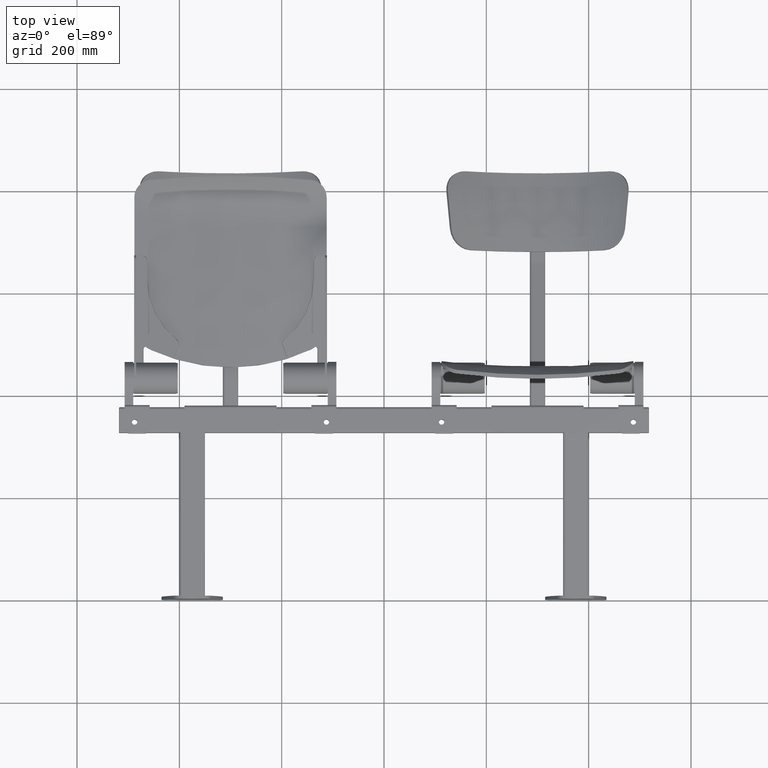
[diagram: clean part render]
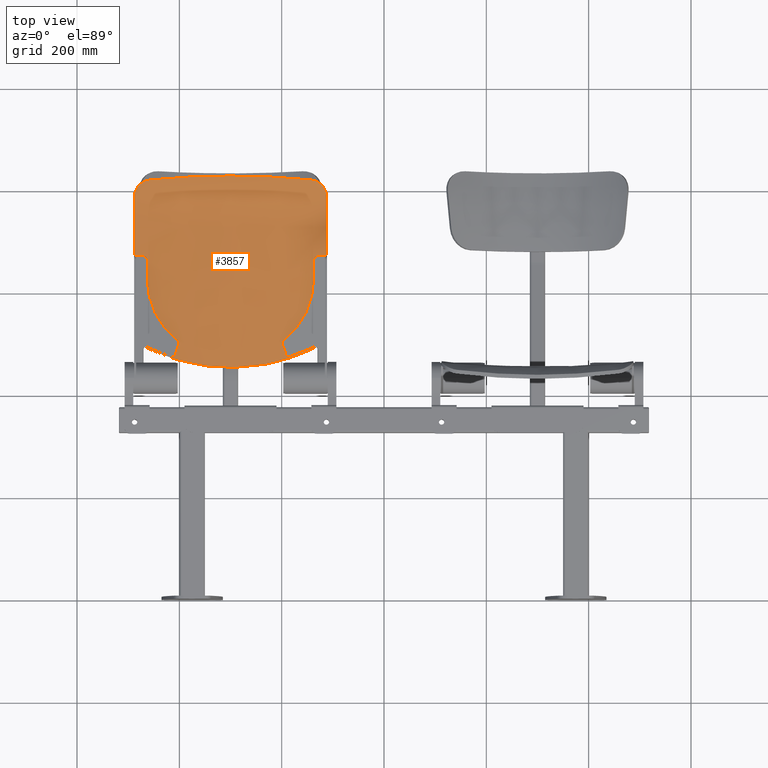
[diagram: same view with one face highlighted and labeled with its STEP entity id]
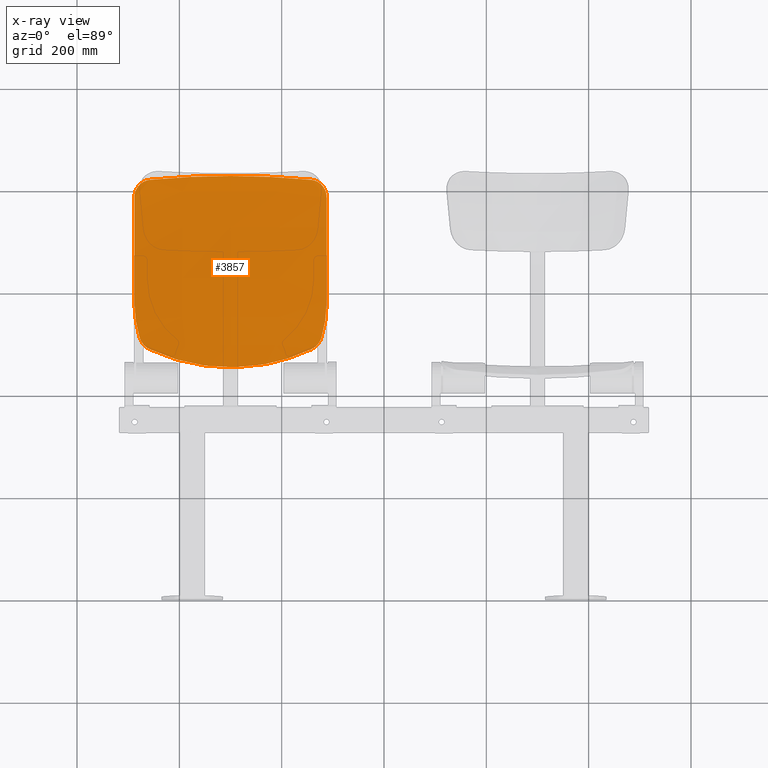
[diagram: x-ray of the same camera — body ghosted, the highlighted face saturated]
A machine part, top view. The second image highlights one B-rep face of the part: STEP entity #3857.
The next image is the same camera in x-ray: the body ghosted, the highlighted face saturated — about 0% of this face is hidden behind the body in this view.
In plain terms, the highlighted face is a freeform B-spline surface patch.
Its self-contained STEP definition (entity closure, byte-faithful):
#2025 = EDGE_CURVE ( 'NONE', #3681, #3687, #23513, .T. ) ;
#2027 = EDGE_CURVE ( 'NONE', #3687, #3689, #23524, .T. ) ;
#2029 = EDGE_CURVE ( 'NONE', #3689, #3690, #23525, .T. ) ;
#2031 = EDGE_CURVE ( 'NONE', #3690, #3691, #23489, .T. ) ;
#2033 = EDGE_CURVE ( 'NONE', #3691, #3692, #23520, .T. ) ;
#2035 = EDGE_CURVE ( 'NONE', #3692, #3693, #23482, .T. ) ;
#2037 = EDGE_CURVE ( 'NONE', #3693, #3694, #23481, .T. ) ;
#2039 = EDGE_CURVE ( 'NONE', #3694, #3695, #23478, .T. ) ;
#2041 = EDGE_CURVE ( 'NONE', #3695, #3696, #23506, .T. ) ;
#2043 = EDGE_CURVE ( 'NONE', #3696, #3697, #23522, .T. ) ;
#2045 = EDGE_CURVE ( 'NONE', #3697, #3698, #23530, .T. ) ;
#2047 = EDGE_CURVE ( 'NONE', #3698, #3699, #23501, .T. ) ;
#2049 = EDGE_CURVE ( 'NONE', #3699, #3674, #23480, .T. ) ;
#2424 = EDGE_CURVE ( 'NONE', #3682, #3681, #23274, .T. ) ;
#2429 = EDGE_CURVE ( 'NONE', #3674, #3683, #23277, .T. ) ;
#2431 = EDGE_CURVE ( 'NONE', #3683, #3688, #23283, .T. ) ;
#2433 = EDGE_CURVE ( 'NONE', #3688, #3682, #23278, .T. ) ;
#3674 = VERTEX_POINT ( 'NONE', #12956 ) ;
#3681 = VERTEX_POINT ( 'NONE', #12963 ) ;
#3682 = VERTEX_POINT ( 'NONE', #12964 ) ;
#3683 = VERTEX_POINT ( 'NONE', #12965 ) ;
#3687 = VERTEX_POINT ( 'NONE', #12969 ) ;
#3688 = VERTEX_POINT ( 'NONE', #12970 ) ;
#3689 = VERTEX_POINT ( 'NONE', #12971 ) ;
#3690 = VERTEX_POINT ( 'NONE', #12972 ) ;
#3691 = VERTEX_POINT ( 'NONE', #12973 ) ;
#3692 = VERTEX_POINT ( 'NONE', #12974 ) ;
#3693 = VERTEX_POINT ( 'NONE', #12975 ) ;
#3694 = VERTEX_POINT ( 'NONE', #12976 ) ;
#3695 = VERTEX_POINT ( 'NONE', #12977 ) ;
#3696 = VERTEX_POINT ( 'NONE', #12978 ) ;
#3697 = VERTEX_POINT ( 'NONE', #12979 ) ;
#3698 = VERTEX_POINT ( 'NONE', #12980 ) ;
#3699 = VERTEX_POINT ( 'NONE', #12981 ) ;
#3826 = ORIENTED_EDGE ( 'NONE', *, *, #2429, .T. ) ;
#3827 = ORIENTED_EDGE ( 'NONE', *, *, #2431, .T. ) ;
#3828 = ORIENTED_EDGE ( 'NONE', *, *, #2433, .T. ) ;
#3829 = ORIENTED_EDGE ( 'NONE', *, *, #2424, .T. ) ;
#3830 = ORIENTED_EDGE ( 'NONE', *, *, #2025, .T. ) ;
#3831 = ORIENTED_EDGE ( 'NONE', *, *, #2027, .T. ) ;
#3857 = ADVANCED_FACE ( 'NONE', ( #13737 ), #4844, .T. ) ;
#3870 = ORIENTED_EDGE ( 'NONE', *, *, #2029, .T. ) ;
#3871 = ORIENTED_EDGE ( 'NONE', *, *, #2031, .T. ) ;
#3872 = ORIENTED_EDGE ( 'NONE', *, *, #2033, .T. ) ;
#3873 = ORIENTED_EDGE ( 'NONE', *, *, #2035, .T. ) ;
#3874 = ORIENTED_EDGE ( 'NONE', *, *, #2037, .T. ) ;
#3875 = ORIENTED_EDGE ( 'NONE', *, *, #2039, .T. ) ;
#3876 = ORIENTED_EDGE ( 'NONE', *, *, #2041, .T. ) ;
#3877 = ORIENTED_EDGE ( 'NONE', *, *, #2043, .T. ) ;
#3878 = ORIENTED_EDGE ( 'NONE', *, *, #2045, .T. ) ;
#3879 = ORIENTED_EDGE ( 'NONE', *, *, #2047, .T. ) ;
#3880 = ORIENTED_EDGE ( 'NONE', *, *, #2049, .T. ) ;
#3946 = EDGE_LOOP ( 'NONE', ( #3826, #3827, #3828, #3829, #3830, #3831, #3870, #3871, #3872, #3873, #3874, #3875, #3876, #3877, #3878, #3879, #3880 ) ) ;
#4844 = B_SPLINE_SURFACE_WITH_KNOTS ( 'NONE', 3, 3, ( 
 ( #13275, #13283, #13284, #13285, #13286, #13287, #13288, #13289, #13290, #13291, #13292, #13293, #13294, #13295, #13296, #13297 ),
 ( #13298, #13299, #13300, #13301, #13302, #13303, #13304, #13305, #13306, #13307, #13308, #13309, #13310, #13311, #13312, #13313 ),
 ( #13314, #13315, #13316, #13317, #13318, #13319, #13320, #13321, #13322, #13323, #13324, #13325, #13326, #13327, #13328, #13329 ),
 ( #13330, #13331, #13332, #13333, #13334, #13335, #13336, #13337, #13338, #13339, #13340, #13341, #13342, #13343, #13344, #13345 ),
 ( #13346, #13347, #13348, #13349, #13350, #13351, #13352, #13353, #13354, #13355, #13356, #13357, #13358, #13359, #13360, #13361 ),
 ( #13362, #13363, #13364, #13365, #13366, #13367, #13368, #13369, #13370, #13371, #13372, #13373, #13374, #13375, #13376, #13377 ),
 ( #13378, #13379, #13380, #13381, #13382, #13383, #13384, #13385, #13386, #13387, #13388, #13389, #13390, #13391, #13392, #13393 ),
 ( #13394, #13395, #13396, #13397, #13398, #13399, #13400, #13401, #13402, #13403, #13404, #13405, #13406, #13407, #13408, #13409 ),
 ( #13410, #13411, #13412, #13413, #13414, #13415, #13416, #13417, #13418, #13419, #13420, #13421, #13422, #13423, #13424, #13425 ),
 ( #13426, #13427, #13428, #13429, #13430, #13431, #13432, #13433, #13434, #13435, #13436, #13437, #13438, #13439, #13440, #13441 ),
 ( #13442, #13443, #13444, #13445, #13446, #13447, #13448, #13449, #13450, #13451, #13452, #13453, #13454, #13455, #13456, #13457 ),
 ( #13458, #13459, #13460, #13461, #13462, #13463, #13464, #13465, #13466, #13467, #13468, #13469, #13470, #13471, #13472, #13473 ),
 ( #13474, #13475, #13476, #13477, #13478, #13479, #13480, #13481, #13482, #13483, #13484, #13485, #13486, #13487, #13488, #13489 ),
 ( #13490, #13491, #13492, #13493, #13494, #13495, #13496, #13497, #13498, #13499, #13500, #13501, #13502, #13503, #13504, #13505 ),
 ( #13506, #13507, #13508, #13509, #13510, #13511, #13512, #13513, #13514, #13515, #13516, #13517, #13518, #13519, #13520, #13521 ),
 ( #13522, #13523, #13524, #13525, #13526, #13527, #13528, #13529, #13530, #13531, #13532, #13533, #13534, #13535, #13536, #13537 ),
 ( #13538, #13539, #13540, #13541, #13542, #13543, #13544, #13545, #13546, #13547, #13548, #13549, #13550, #13551, #13552, #13553 ),
 ( #13554, #13555, #13556, #13557, #13558, #13559, #13560, #13561, #13562, #13563, #13564, #13565, #13566, #13567, #13568, #13569 ) ),
 .UNSPECIFIED., .F., .F., .F.,
 ( 4, 3, 1, 1, 1, 2, 1, 1, 1, 3, 4 ),
 ( 4, 1, 1, 1, 1, 1, 1, 1, 1, 1, 3, 4 ),
 ( -0.01000000000000000000, 0.0000000000000000000, 0.1250000000000000300, 0.2500000000000000600, 0.3750000000000001100, 0.5000000000000001100, 0.6250000000000001100, 0.7500000000000000000, 0.8750000000000000000, 1.000000000000000000, 1.010100000000000000 ),
 ( 0.0000000000000000000, 0.1147218755964356400, 0.1948007983974813000, 0.2606139848572682200, 0.3264298036242167000, 0.4581111813546794300, 0.5901538615926241700, 0.7220127297153236000, 0.8538715978388121700, 0.9065204622699966100, 1.000000000000000000, 1.010000000000000000 ),
 .UNSPECIFIED. ) ;
#10652 = CARTESIAN_POINT ( 'NONE',  ( -161.9307923834678600, 2.752106804156063500, 387.0462392302500800 ) ) ;
#10656 = CARTESIAN_POINT ( 'NONE',  ( -159.7943611095355400, 2.319651905510944800, 387.4653220429654500 ) ) ;
#10663 = CARTESIAN_POINT ( 'NONE',  ( -188.0003610290081900, 20.10003408173287200, 351.0380257441916600 ) ) ;
#10664 = CARTESIAN_POINT ( 'NONE',  ( -157.5625037645712000, 2.046636857521823700, 387.6770732073621800 ) ) ;
#10666 = CARTESIAN_POINT ( 'NONE',  ( -165.0111693090034600, 3.598810338090265800, 386.1385163882367800 ) ) ;
#10667 = CARTESIAN_POINT ( 'NONE',  ( -166.0170798147177300, 3.914268316039979800, 385.7889951144273900 ) ) ;
#10668 = CARTESIAN_POINT ( 'NONE',  ( -167.9885987635173000, 4.606542931886280300, 384.9967292030623300 ) ) ;
#10669 = CARTESIAN_POINT ( 'NONE',  ( -168.9576184954432800, 4.985169228536807200, 384.5516995295242900 ) ) ;
#10670 = CARTESIAN_POINT ( 'NONE',  ( -171.7460636960530800, 6.178910016592526600, 383.1070905339484500 ) ) ;
#10671 = CARTESIAN_POINT ( 'NONE',  ( -173.4675323211896800, 7.057407107268715200, 381.9931816724555300 ) ) ;
#10672 = CARTESIAN_POINT ( 'NONE',  ( -175.8713323209279100, 8.452154543490831200, 380.1030223356806300 ) ) ;
#10673 = CARTESIAN_POINT ( 'NONE',  ( -176.6441318135372300, 8.931177471548627600, 379.4341603454224700 ) ) ;
#10674 = CARTESIAN_POINT ( 'NONE',  ( -178.1095046152374000, 9.892075875023888200, 378.0426126705303900 ) ) ;
#10675 = CARTESIAN_POINT ( 'NONE',  ( -178.8051564765964700, 10.37561036633549500, 377.3177934891274400 ) ) ;
#10676 = CARTESIAN_POINT ( 'NONE',  ( -180.7881624504383400, 11.82347418487263500, 375.0547530868735200 ) ) ;
#10677 = CARTESIAN_POINT ( 'NONE',  ( -181.9727431512814300, 12.78538886778296800, 373.4291333556562900 ) ) ;
#10678 = CARTESIAN_POINT ( 'NONE',  ( -183.5499553526426800, 14.17291251884154200, 370.7895514188621200 ) ) ;
#10679 = CARTESIAN_POINT ( 'NONE',  ( -184.0362415702002200, 14.62097501948592500, 369.8853522762277100 ) ) ;
#10680 = CARTESIAN_POINT ( 'NONE',  ( -184.9273622507408000, 15.47583632196635500, 368.0357136656626800 ) ) ;
#10681 = CARTESIAN_POINT ( 'NONE',  ( -185.3330806321035300, 15.88343083200705800, 367.0887904106342000 ) ) ;
#10682 = CARTESIAN_POINT ( 'NONE',  ( -186.4308913911261500, 17.03495826228458300, 364.1772621606903000 ) ) ;
#10683 = CARTESIAN_POINT ( 'NONE',  ( -187.0056615143966200, 17.70287782458310800, 362.1408064175195100 ) ) ;
#10684 = CARTESIAN_POINT ( 'NONE',  ( -187.4992421827730000, 18.42086768193877300, 359.4685738363272700 ) ) ;
#10685 = CARTESIAN_POINT ( 'NONE',  ( -187.5865181345623400, 18.55857935892640100, 358.9278404748816300 ) ) ;
#10686 = CARTESIAN_POINT ( 'NONE',  ( -187.7361014725854900, 18.82008964843570500, 357.8441073164609600 ) ) ;
#10687 = CARTESIAN_POINT ( 'NONE',  ( -187.7986671728976400, 18.94424713672969300, 357.2998119175206300 ) ) ;
#10688 = CARTESIAN_POINT ( 'NONE',  ( -187.9493329945763100, 19.29777525371119000, 355.6597895335309000 ) ) ;
#10689 = CARTESIAN_POINT ( 'NONE',  ( -188.0004825359032200, 19.50823275101340900, 354.5569397770018400 ) ) ;
#10690 = CARTESIAN_POINT ( 'NONE',  ( -188.0003610163783500, 19.69525980169285600, 353.4448146262167300 ) ) ;
#10692 = CARTESIAN_POINT ( 'NONE',  ( -188.0003610163783500, 19.69525980169285600, 353.4448146262167300 ) ) ;
#10693 = CARTESIAN_POINT ( 'NONE',  ( -187.9999999999998000, 20.54675829166112800, 286.8059957899040500 ) ) ;
#10695 = CARTESIAN_POINT ( 'NONE',  ( -188.0002704932509200, 20.76870075088539700, 195.1348687407526400 ) ) ;
#10696 = CARTESIAN_POINT ( 'NONE',  ( -188.0002597949878700, 20.41128037194348700, 348.6204556509501300 ) ) ;
#10697 = CARTESIAN_POINT ( 'NONE',  ( -187.9999572090671300, 20.91371395486159600, 343.7714759250343900 ) ) ;
#10698 = CARTESIAN_POINT ( 'NONE',  ( -187.9995504176876900, 21.10686941421676400, 341.3382427010866400 ) ) ;
#10699 = CARTESIAN_POINT ( 'NONE',  ( -187.9982616760709400, 21.53901445741883300, 334.0402310960345700 ) ) ;
#10700 = CARTESIAN_POINT ( 'NONE',  ( -187.9970786169041900, 21.62889871976726400, 329.1762628582104100 ) ) ;
#10701 = CARTESIAN_POINT ( 'NONE',  ( -187.9944582942702300, 21.54835676745498000, 314.5867836322047400 ) ) ;
#10702 = CARTESIAN_POINT ( 'NONE',  ( -187.9941656677847600, 21.02699610735854900, 304.8637032570419500 ) ) ;
#10703 = CARTESIAN_POINT ( 'NONE',  ( -188.0000043415346300, 20.76875424391301600, 295.1388003201665200 ) ) ;
#10704 = CARTESIAN_POINT ( 'NONE',  ( -188.0000043415346300, 20.76875424391301600, 295.1388003201665200 ) ) ;
#10706 = CARTESIAN_POINT ( 'NONE',  ( -188.0000000000000000, 20.71787559975000200, 181.6102276671918200 ) ) ;
#10707 = CARTESIAN_POINT ( 'NONE',  ( -188.0000000000000000, 20.51702257723141200, 278.4731902733588000 ) ) ;
#10708 = CARTESIAN_POINT ( 'NONE',  ( -187.9999999999999700, 20.59652503550536200, 261.8075787980238800 ) ) ;
#10709 = CARTESIAN_POINT ( 'NONE',  ( -188.0000000000001100, 20.70631535227798600, 253.4747728374771000 ) ) ;
#10710 = CARTESIAN_POINT ( 'NONE',  ( -188.0000024197411800, 20.76857764545582400, 245.1419670024642100 ) ) ;
#10711 = CARTESIAN_POINT ( 'NONE',  ( -188.0000024197411800, 20.76857764545582400, 245.1419670024642100 ) ) ;
#10712 = CARTESIAN_POINT ( 'NONE',  ( -187.9604046388981300, 20.88634824880935200, 228.4731107302308400 ) ) ;
#10717 = CARTESIAN_POINT ( 'NONE',  ( -187.8516178611183100, 20.79925682909749100, 211.8037675155353300 ) ) ;
#10718 = CARTESIAN_POINT ( 'NONE',  ( -188.0002704932509200, 20.76870075088539700, 195.1348687407526400 ) ) ;
#10720 = CARTESIAN_POINT ( 'NONE',  ( -187.8561337672505000, 20.76826293940671400, 145.3053330435444900 ) ) ;
#10721 = CARTESIAN_POINT ( 'NONE',  ( -187.6293279379183000, 20.77049117073975600, 139.7886924829899400 ) ) ;
#10722 = CARTESIAN_POINT ( 'NONE',  ( -188.0000000000000000, 20.66261550019772700, 168.0855903648986800 ) ) ;
#10723 = CARTESIAN_POINT ( 'NONE',  ( -188.0000000000001700, 20.73240032302049600, 154.5608413924775600 ) ) ;
#10724 = CARTESIAN_POINT ( 'NONE',  ( -188.0000000000001700, 20.73240032302049600, 154.5608413924775600 ) ) ;
#10725 = CARTESIAN_POINT ( 'NONE',  ( -187.9999985197239900, 20.74669016184527200, 151.7913124840393100 ) ) ;
#10730 = CARTESIAN_POINT ( 'NONE',  ( -187.9617645721786500, 20.75891041311545800, 148.7059495477198500 ) ) ;
#10731 = CARTESIAN_POINT ( 'NONE',  ( -187.8561337672505000, 20.76826293940671400, 145.3053330435444900 ) ) ;
#10733 = CARTESIAN_POINT ( 'NONE',  ( 160.9680188834951500, 17.73354075608154200, 58.02742265166029500 ) ) ;
#10734 = CARTESIAN_POINT ( 'NONE',  ( -187.2807706759927000, 20.77023973563528300, 134.2778366416799300 ) ) ;
#10735 = CARTESIAN_POINT ( 'NONE',  ( -186.5878168381007100, 20.76932943243692300, 126.0259285231781200 ) ) ;
#10736 = CARTESIAN_POINT ( 'NONE',  ( -186.3304030625571700, 20.76939086223431400, 123.2776461188556400 ) ) ;
#10737 = CARTESIAN_POINT ( 'NONE',  ( -185.7559592309685000, 20.76866451108937300, 117.7863905388604200 ) ) ;
#10738 = CARTESIAN_POINT ( 'NONE',  ( -185.4415962854419300, 20.76828679802934000, 115.0439994888422700 ) ) ;
#10739 = CARTESIAN_POINT ( 'NONE',  ( -184.7210702314651200, 20.76821681478832500, 109.5709197206755200 ) ) ;
#10740 = CARTESIAN_POINT ( 'NONE',  ( -184.3135303487629500, 20.76826736058515600, 106.8392029876796300 ) ) ;
#10741 = CARTESIAN_POINT ( 'NONE',  ( -183.3667875600375500, 20.76842436018411700, 101.4024990322088100 ) ) ;
#10742 = CARTESIAN_POINT ( 'NONE',  ( -182.8276236080093000, 20.76856539767488400, 98.69676049582594100 ) ) ;
#10743 = CARTESIAN_POINT ( 'NONE',  ( -181.8924959897398100, 20.76834923969929000, 94.66238199118087900 ) ) ;
#10744 = CARTESIAN_POINT ( 'NONE',  ( -181.5604925168917100, 20.76868104141195900, 93.32196488731492000 ) ) ;
#10745 = CARTESIAN_POINT ( 'NONE',  ( -180.8633813133173500, 20.76872984553858000, 90.65101702499924800 ) ) ;
#10746 = CARTESIAN_POINT ( 'NONE',  ( -180.4996515656308400, 20.76874722044870600, 89.31965642682985200 ) ) ;
#10747 = CARTESIAN_POINT ( 'NONE',  ( -179.3833899269847100, 20.76878236888227000, 85.33237113408149800 ) ) ;
#10748 = CARTESIAN_POINT ( 'NONE',  ( -178.6058152103351200, 20.76878321119306400, 82.68330872436452200 ) ) ;
#10749 = CARTESIAN_POINT ( 'NONE',  ( -177.8472204437869700, 20.76877148168528100, 80.02891621790414000 ) ) ;
#10750 = CARTESIAN_POINT ( 'NONE',  ( -177.1265441731308100, 20.76876038828309100, 77.50720330557550100 ) ) ;
#10751 = CARTESIAN_POINT ( 'NONE',  ( -177.8472204437869700, 20.76877148168528100, 80.02891621790414000 ) ) ;
#10752 = CARTESIAN_POINT ( 'NONE',  ( 158.6470066615812900, 17.20852178291561100, 56.92407457527210100 ) ) ;
#10756 = CARTESIAN_POINT ( 'NONE',  ( -176.1621753666692600, 20.69352493142541100, 75.10347017252270500 ) ) ;
#10757 = CARTESIAN_POINT ( 'NONE',  ( -174.3637518703433500, 20.45846816433891400, 71.66893401781945300 ) ) ;
#10758 = CARTESIAN_POINT ( 'NONE',  ( -173.7050525159534400, 20.35972995063615100, 70.55287153716511700 ) ) ;
#10759 = CARTESIAN_POINT ( 'NONE',  ( -172.6245779612536400, 20.17975700038456900, 68.92369873428717100 ) ) ;
#10760 = CARTESIAN_POINT ( 'NONE',  ( -172.2495767485418400, 20.11453582098267400, 68.38926289841263900 ) ) ;
#10761 = CARTESIAN_POINT ( 'NONE',  ( -171.4777064444740500, 19.97517598172506900, 67.34831255538851700 ) ) ;
#10762 = CARTESIAN_POINT ( 'NONE',  ( -171.0798147734442700, 19.90087011094470900, 66.84022426386104600 ) ) ;
#10763 = CARTESIAN_POINT ( 'NONE',  ( -169.0312357481753600, 19.50705668433019100, 64.36091615319901400 ) ) ;
#10764 = CARTESIAN_POINT ( 'NONE',  ( -167.2054159362721700, 19.12032383369884400, 62.57102823013967500 ) ) ;
#10765 = CARTESIAN_POINT ( 'NONE',  ( -164.6775148579710300, 18.56416181166783700, 60.58377722744607800 ) ) ;
#10766 = CARTESIAN_POINT ( 'NONE',  ( -164.1582948851175000, 18.44899629888699300, 60.19816840988200800 ) ) ;
#10767 = CARTESIAN_POINT ( 'NONE',  ( -163.1035093103151000, 18.21371801605526400, 59.45930442207008300 ) ) ;
#10768 = CARTESIAN_POINT ( 'NONE',  ( -162.5673519345284300, 18.09347914417146400, 59.10547704000590100 ) ) ;
#10769 = CARTESIAN_POINT ( 'NONE',  ( -160.9325802787209300, 17.72568321073669800, 58.09054806373787700 ) ) ;
#10770 = CARTESIAN_POINT ( 'NONE',  ( -159.8077426825509200, 17.47108321186140100, 57.47585877806137200 ) ) ;
#10771 = CARTESIAN_POINT ( 'NONE',  ( -158.6470066615885300, 17.20852178291561100, 56.92407457525688800 ) ) ;
#10772 = CARTESIAN_POINT ( 'NONE',  ( -158.6470066615885300, 17.20852178291561100, 56.92407457525688800 ) ) ;
#10773 = CARTESIAN_POINT ( 'NONE',  ( -152.5139461310511100, 15.82120719273344100, 54.00858194611816300 ) ) ;
#10778 = CARTESIAN_POINT ( 'NONE',  ( -146.3237514000865100, 14.46630350993418200, 51.27293858001855400 ) ) ;
#10779 = CARTESIAN_POINT ( 'NONE',  ( -133.8223658919739300, 11.88472520544387500, 46.15189197871374900 ) ) ;
#10780 = CARTESIAN_POINT ( 'NONE',  ( -127.5112275250268800, 10.65755652935141700, 43.76656248265194200 ) ) ;
#10781 = CARTESIAN_POINT ( 'NONE',  ( -114.7639314481753000, 8.363964109044303500, 39.34326463750348100 ) ) ;
#10782 = CARTESIAN_POINT ( 'NONE',  ( -108.3278203977966100, 7.297149032115518400, 37.30533699559144600 ) ) ;
#10783 = CARTESIAN_POINT ( 'NONE',  ( -95.32765896566128600, 5.340321209575727800, 33.57863069835323000 ) ) ;
#10784 = CARTESIAN_POINT ( 'NONE',  ( -88.76363803704036600, 4.450084348576412600, 31.88986596154720500 ) ) ;
#10785 = CARTESIAN_POINT ( 'NONE',  ( -75.50468742558540200, 2.855246151098161300, 28.86715746075177300 ) ) ;
#10786 = CARTESIAN_POINT ( 'NONE',  ( -68.80978165121897000, 2.150488928068222900, 27.53321160825833000 ) ) ;
#10787 = CARTESIAN_POINT ( 'NONE',  ( -58.66645037018921700, 1.237501805329758600, 25.80547783780982500 ) ) ;
#10788 = CARTESIAN_POINT ( 'NONE',  ( -55.26850312656743800, 0.9571936537960538100, 25.27512709527126200 ) ) ;
#10789 = CARTESIAN_POINT ( 'NONE',  ( -50.14588653438692500, 0.5734443313318586800, 24.54910644716743200 ) ) ;
#10790 = CARTESIAN_POINT ( 'NONE',  ( -48.43406436606687000, 0.4516473401142918600, 24.31868583339880300 ) ) ;
#10791 = CARTESIAN_POINT ( 'NONE',  ( -45.00177126421061800, 0.2204154373137373900, 23.88123639168481200 ) ) ;
#10792 = CARTESIAN_POINT ( 'NONE',  ( -43.28131495350283600, 0.1109931981291348700, 23.67423092865755100 ) ) ;
#10793 = CARTESIAN_POINT ( 'NONE',  ( -27.79879852014981300, -0.8153552541900861400, 21.92174943098836000 ) ) ;
#10794 = CARTESIAN_POINT ( 'NONE',  ( -13.97599359971100900, -1.229528219870969400, 21.13830415327201000 ) ) ;
#10795 = CARTESIAN_POINT ( 'NONE',  ( 13.79164523789719800, -1.233190806839174100, 21.13137772527573700 ) ) ;
#10796 = CARTESIAN_POINT ( 'NONE',  ( 27.52730618652287500, -0.8226915584801209900, 21.90786981962545400 ) ) ;
#10797 = CARTESIAN_POINT ( 'NONE',  ( 54.71003125570353400, 0.7861727647612647400, 24.95154757344035400 ) ) ;
#10798 = CARTESIAN_POINT ( 'NONE',  ( 68.15791944664441400, 1.985486190646049900, 27.21896412275002000 ) ) ;
#10799 = CARTESIAN_POINT ( 'NONE',  ( 88.11667955226798200, 4.365810519770730200, 31.73001662803182700 ) ) ;
#10800 = CARTESIAN_POINT ( 'NONE',  ( 94.73400708328307500, 5.256355367094117000, 33.41911244316225500 ) ) ;
#10801 = CARTESIAN_POINT ( 'NONE',  ( 102.9610215992037900, 6.488224780132000500, 35.76469118256586900 ) ) ;
#10802 = CARTESIAN_POINT ( 'NONE',  ( 104.6041919002381900, 6.740520118431065900, 36.24552658860660200 ) ) ;
#10803 = CARTESIAN_POINT ( 'NONE',  ( 107.8860628356463300, 7.256822143652810200, 37.23073575288720600 ) ) ;
#10804 = CARTESIAN_POINT ( 'NONE',  ( 109.5255197848544800, 7.520959466885134500, 37.73535959441884600 ) ) ;
#10805 = CARTESIAN_POINT ( 'NONE',  ( 114.4258576345850600, 8.328781750068960900, 39.28107087823936200 ) ) ;
#10806 = CARTESIAN_POINT ( 'NONE',  ( 117.6717565419127700, 8.888360746597522100, 40.35485797923724500 ) ) ;
#10807 = CARTESIAN_POINT ( 'NONE',  ( 127.3477859255645900, 10.62588164938702600, 43.70496435536387000 ) ) ;
#10808 = CARTESIAN_POINT ( 'NONE',  ( 133.7161802713735300, 11.86333866442435300, 46.10983611969705700 ) ) ;
#10809 = CARTESIAN_POINT ( 'NONE',  ( 146.2963923691725900, 14.46011834298788700, 51.26030465745976300 ) ) ;
#10810 = CARTESIAN_POINT ( 'NONE',  ( 152.5081498132995000, 15.81989605032691200, 54.00582653280557800 ) ) ;
#10811 = CARTESIAN_POINT ( 'NONE',  ( 158.6470066615812900, 17.20852178291561100, 56.92407457527210100 ) ) ;
#10813 = CARTESIAN_POINT ( 'NONE',  ( 187.8561337348749600, 20.76826294022722400, 145.3053322055062900 ) ) ;
#10814 = CARTESIAN_POINT ( 'NONE',  ( 187.9617630678007500, 20.75891075819067000, 148.7058796015629100 ) ) ;
#10815 = CARTESIAN_POINT ( 'NONE',  ( 163.1276418451970500, 18.22294464349656100, 59.37097625333789400 ) ) ;
#10816 = CARTESIAN_POINT ( 'NONE',  ( 166.1400320896924500, 18.88604060083806500, 61.73080094343958300 ) ) ;
#10817 = CARTESIAN_POINT ( 'NONE',  ( 167.1059881308573600, 19.09509690542424900, 62.57534211971182700 ) ) ;
#10818 = CARTESIAN_POINT ( 'NONE',  ( 168.4966244944377300, 19.38700751335102300, 63.93169029018180500 ) ) ;
#10819 = CARTESIAN_POINT ( 'NONE',  ( 168.9483958727412300, 19.48024757131236500, 64.39689155295224100 ) ) ;
#10820 = CARTESIAN_POINT ( 'NONE',  ( 169.8225287260735600, 19.65688857898604500, 65.34635787867596000 ) ) ;
#10821 = CARTESIAN_POINT ( 'NONE',  ( 170.2459107984023200, 19.74051133937869600, 65.83160995255818200 ) ) ;
#10822 = CARTESIAN_POINT ( 'NONE',  ( 172.2958274183403700, 20.13483389405554300, 68.30946892741727100 ) ) ;
#10823 = CARTESIAN_POINT ( 'NONE',  ( 173.7238859841596900, 20.37411746130427300, 70.45506174802406500 ) ) ;
#10824 = CARTESIAN_POINT ( 'NONE',  ( 175.2416462503794300, 20.57338092186168400, 73.34356764168481400 ) ) ;
#10825 = CARTESIAN_POINT ( 'NONE',  ( 175.5315022983829200, 20.60820212117079100, 73.93161133157833800 ) ) ;
#10826 = CARTESIAN_POINT ( 'NONE',  ( 176.0785453663098400, 20.66732404252907800, 75.11745352252820900 ) ) ;
#10827 = CARTESIAN_POINT ( 'NONE',  ( 176.3364802591625300, 20.69172764876079600, 75.71662438389006400 ) ) ;
#10828 = CARTESIAN_POINT ( 'NONE',  ( 177.0638284816673700, 20.74994188980132700, 77.53275346466681100 ) ) ;
#10829 = CARTESIAN_POINT ( 'NONE',  ( 177.4869414852557600, 20.76876593689940600, 78.76826681285037100 ) ) ;
#10830 = CARTESIAN_POINT ( 'NONE',  ( 177.8472204437872200, 20.76877148168539100, 80.02891621790480800 ) ) ;
#10831 = CARTESIAN_POINT ( 'NONE',  ( 177.8472204437872200, 20.76877148168539100, 80.02891621790480800 ) ) ;
#10832 = CARTESIAN_POINT ( 'NONE',  ( 178.6058873567194800, 20.76878321230879400, 82.68356117116334800 ) ) ;
#10837 = CARTESIAN_POINT ( 'NONE',  ( 179.3835348694088600, 20.76878237019639400, 85.33285694113560300 ) ) ;
#10838 = CARTESIAN_POINT ( 'NONE',  ( 180.4999939035477000, 20.76874720672882900, 89.32089522993227600 ) ) ;
#10839 = CARTESIAN_POINT ( 'NONE',  ( 180.8638222991141600, 20.76872982299152800, 90.65264253498716600 ) ) ;
#10840 = CARTESIAN_POINT ( 'NONE',  ( 181.5611266435071200, 20.76868098867874600, 93.32445871744641900 ) ) ;
#10841 = CARTESIAN_POINT ( 'NONE',  ( 181.8930975678264300, 20.76834915134697100, 94.66486949970143900 ) ) ;
#10842 = CARTESIAN_POINT ( 'NONE',  ( 182.8280993581111300, 20.76856596307823500, 98.69902899841886800 ) ) ;
#10843 = CARTESIAN_POINT ( 'NONE',  ( 183.3672469910154300, 20.76842427263173400, 101.4048792084983600 ) ) ;
#10844 = CARTESIAN_POINT ( 'NONE',  ( 184.3140105771131500, 20.76826729232401900, 106.8422190946227800 ) ) ;
#10845 = CARTESIAN_POINT ( 'NONE',  ( 184.7214759461995500, 20.76821679897432200, 109.5737794669941800 ) ) ;
#10846 = CARTESIAN_POINT ( 'NONE',  ( 185.4418528627601900, 20.76828687822127500, 115.0461706839612600 ) ) ;
#10847 = CARTESIAN_POINT ( 'NONE',  ( 185.7561739485199700, 20.76866498995534700, 117.7883198406672100 ) ) ;
#10848 = CARTESIAN_POINT ( 'NONE',  ( 186.3305525823670900, 20.76939084379398500, 123.2791987333566400 ) ) ;
#10849 = CARTESIAN_POINT ( 'NONE',  ( 186.5879427975892800, 20.76932961438904000, 126.0273241447684400 ) ) ;
#10850 = CARTESIAN_POINT ( 'NONE',  ( 187.2808378865751700, 20.77023979094632700, 134.2788457638490100 ) ) ;
#10851 = CARTESIAN_POINT ( 'NONE',  ( 187.6293436118015400, 20.77049101113711100, 139.7890743229369300 ) ) ;
#10852 = CARTESIAN_POINT ( 'NONE',  ( 187.8561337348749600, 20.76826294022722400, 145.3053322055062900 ) ) ;
#10856 = CARTESIAN_POINT ( 'NONE',  ( 187.9999985196202200, 20.74669052133819500, 151.7912428073765300 ) ) ;
#10857 = CARTESIAN_POINT ( 'NONE',  ( 188.0000000000000300, 20.73240032302055300, 154.5608413924775600 ) ) ;
#10858 = CARTESIAN_POINT ( 'NONE',  ( 188.0000000000000300, 20.73240032302055300, 154.5608413924775600 ) ) ;
#10859 = CARTESIAN_POINT ( 'NONE',  ( 188.0000000000000300, 20.66261550035862600, 168.0855903337334500 ) ) ;
#10864 = CARTESIAN_POINT ( 'NONE',  ( 188.0000000000000000, 20.71787559950655900, 181.6102276048622700 ) ) ;
#10865 = CARTESIAN_POINT ( 'NONE',  ( 188.0002704937090800, 20.76870075447130800, 195.1348686472438800 ) ) ;
#12586 = CARTESIAN_POINT ( 'NONE',  ( -13.20698769630251400, -8.231365592305675000, 395.1348294431982100 ) ) ;
#12592 = CARTESIAN_POINT ( 'NONE',  ( 2.648100412316227500E-011, -8.231365592305369500, 395.1348294431980400 ) ) ;
#12595 = CARTESIAN_POINT ( 'NONE',  ( -26.39382860236425900, -8.002075075240098200, 394.9780139128624800 ) ) ;
#12596 = CARTESIAN_POINT ( 'NONE',  ( -52.72801451827248100, -7.096636475589828100, 394.3533174906716000 ) ) ;
#12597 = CARTESIAN_POINT ( 'NONE',  ( -65.87534721530467200, -6.420275734356474500, 393.8854406564926800 ) ) ;
#12598 = CARTESIAN_POINT ( 'NONE',  ( -92.13234105450263200, -4.650390133074344200, 392.6405208341699900 ) ) ;
#12599 = CARTESIAN_POINT ( 'NONE',  ( -105.2419921466284500, -3.556689801684516500, 391.8634837664969800 ) ) ;
#12600 = CARTESIAN_POINT ( 'NONE',  ( -131.4268789399799300, -1.006802601280001300, 390.0013200699652900 ) ) ;
#12601 = CARTESIAN_POINT ( 'NONE',  ( -144.5021368033164600, 0.4490094703678659800, 388.9161971176283100 ) ) ;
#12602 = CARTESIAN_POINT ( 'NONE',  ( -157.5625037645712000, 2.046636857521823700, 387.6770732073621800 ) ) ;
#12642 = CARTESIAN_POINT ( 'NONE',  ( 187.8825438228266200, 20.79291866307019300, 208.3413855723840400 ) ) ;
#12643 = CARTESIAN_POINT ( 'NONE',  ( 188.0002704937090800, 20.76870075447130800, 195.1348686472438800 ) ) ;
#12646 = CARTESIAN_POINT ( 'NONE',  ( 188.0001832733614400, 19.32086501596390300, 355.6701718077223400 ) ) ;
#12647 = CARTESIAN_POINT ( 'NONE',  ( 188.0008113306029100, 19.68966097000120300, 353.4487847977398500 ) ) ;
#12648 = CARTESIAN_POINT ( 'NONE',  ( 187.9267931108641400, 20.85286775834587700, 221.5485554308890500 ) ) ;
#12649 = CARTESIAN_POINT ( 'NONE',  ( 187.9801970909998400, 20.80915146410566400, 238.0570210516786200 ) ) ;
#12650 = CARTESIAN_POINT ( 'NONE',  ( 187.9907501112511700, 20.79448257012088100, 241.3587098980716200 ) ) ;
#12651 = CARTESIAN_POINT ( 'NONE',  ( 188.0069260207246200, 20.74937156544976000, 247.9620843153297500 ) ) ;
#12652 = CARTESIAN_POINT ( 'NONE',  ( 188.0122432531808000, 20.71849753752281800, 251.2637138128870300 ) ) ;
#12653 = CARTESIAN_POINT ( 'NONE',  ( 188.0221287570721200, 20.62325176249603200, 261.1685701993812400 ) ) ;
#12654 = CARTESIAN_POINT ( 'NONE',  ( 188.0205850428207000, 20.55625464400529600, 267.7717988123501400 ) ) ;
#12655 = CARTESIAN_POINT ( 'NONE',  ( 188.0120115419880700, 20.53496499773741500, 280.9787162647957600 ) ) ;
#12656 = CARTESIAN_POINT ( 'NONE',  ( 188.0049101980313800, 20.58052148779119500, 287.5828289083611400 ) ) ;
#12657 = CARTESIAN_POINT ( 'NONE',  ( 187.9963098587145400, 20.90789511738904900, 300.7836204449415600 ) ) ;
#12658 = CARTESIAN_POINT ( 'NONE',  ( 187.9949214131723400, 21.20306497783924700, 307.3805816121471300 ) ) ;
#12659 = CARTESIAN_POINT ( 'NONE',  ( 187.9951887290693800, 21.60086299805787400, 320.5795366797672200 ) ) ;
#12660 = CARTESIAN_POINT ( 'NONE',  ( 187.9967558568738200, 21.70001808430384200, 327.1794941431476200 ) ) ;
#12661 = CARTESIAN_POINT ( 'NONE',  ( 187.9988021638893400, 21.37808750202004800, 337.0523711029184700 ) ) ;
#12662 = CARTESIAN_POINT ( 'NONE',  ( 187.9994215285154800, 21.19288606774246400, 340.3394205427013000 ) ) ;
#12663 = CARTESIAN_POINT ( 'NONE',  ( 188.0002994118128200, 20.62201462423689000, 346.9034574554690900 ) ) ;
#12664 = CARTESIAN_POINT ( 'NONE',  ( 188.0003629024022600, 20.24436696397968300, 350.1808476178542800 ) ) ;
#12665 = CARTESIAN_POINT ( 'NONE',  ( 188.0008113306029100, 19.68966097000120300, 353.4487847977398500 ) ) ;
#12666 = CARTESIAN_POINT ( 'NONE',  ( 144.5156282662131800, 0.4506598321736429200, 388.9149170927779600 ) ) ;
#12667 = CARTESIAN_POINT ( 'NONE',  ( 157.5625037644820500, 2.046636857515995000, 387.6770732073326300 ) ) ;
#12668 = CARTESIAN_POINT ( 'NONE',  ( 187.7972898963043600, 18.85739096823871800, 357.8361433858999000 ) ) ;
#12669 = CARTESIAN_POINT ( 'NONE',  ( 187.2174730194040300, 18.00956501215630800, 361.0031025979952800 ) ) ;
#12670 = CARTESIAN_POINT ( 'NONE',  ( 186.9779731111521000, 17.70139897728019900, 362.0450090595342100 ) ) ;
#12671 = CARTESIAN_POINT ( 'NONE',  ( 186.4080053036040900, 17.02907741658589600, 364.1003200955858000 ) ) ;
#12672 = CARTESIAN_POINT ( 'NONE',  ( 186.0760370870433700, 16.66299924834195100, 365.1165258324844600 ) ) ;
#12673 = CARTESIAN_POINT ( 'NONE',  ( 184.9680422570492900, 15.50002160056362000, 368.0605664574726500 ) ) ;
#12674 = CARTESIAN_POINT ( 'NONE',  ( 184.0764205241787600, 14.63659563935350900, 369.9060906947830200 ) ) ;
#12675 = CARTESIAN_POINT ( 'NONE',  ( 182.7742039139970700, 13.49032896525359800, 372.0884097828467800 ) ) ;
#12676 = CARTESIAN_POINT ( 'NONE',  ( 182.5042643782259700, 13.25769898595174600, 372.5185759236134700 ) ) ;
#12677 = CARTESIAN_POINT ( 'NONE',  ( 181.9450365597996600, 12.78668259519669800, 373.3666007206280100 ) ) ;
#12678 = CARTESIAN_POINT ( 'NONE',  ( 181.6551164315469300, 12.54779334324861200, 373.7853075195754400 ) ) ;
#12679 = CARTESIAN_POINT ( 'NONE',  ( 180.7608182666475900, 11.82819277763271500, 375.0161005529601000 ) ) ;
#12680 = CARTESIAN_POINT ( 'NONE',  ( 180.1327243867388000, 11.34506603623614600, 375.8023234204249500 ) ) ;
#12681 = CARTESIAN_POINT ( 'NONE',  ( 178.1512682785179000, 9.897883977909275500, 378.0648693749528200 ) ) ;
#12682 = CARTESIAN_POINT ( 'NONE',  ( 176.7019067833086900, 8.935940384569731200, 379.4461922016202500 ) ) ;
#12683 = CARTESIAN_POINT ( 'NONE',  ( 174.7079365393491100, 7.776682268013193100, 381.0187052177830700 ) ) ;
#12684 = CARTESIAN_POINT ( 'NONE',  ( 174.2999346565027800, 7.546994917835530000, 381.3254097921094400 ) ) ;
#12685 = CARTESIAN_POINT ( 'NONE',  ( 173.4645548477258200, 7.092995692675131600, 381.9229595959647600 ) ) ;
#12686 = CARTESIAN_POINT ( 'NONE',  ( 173.0376827018280300, 6.869007037232093700, 382.2133583585599000 ) ) ;
#12687 = CARTESIAN_POINT ( 'NONE',  ( 171.7394329051417100, 6.213009087676619300, 383.0523129788101600 ) ) ;
#12688 = CARTESIAN_POINT ( 'NONE',  ( 170.8466774147736700, 5.794866159952860600, 383.5714805229006300 ) ) ;
#12689 = CARTESIAN_POINT ( 'NONE',  ( 169.0037124329706400, 5.003956277876776300, 384.5293115234221700 ) ) ;
#12690 = CARTESIAN_POINT ( 'NONE',  ( 168.0535150792808300, 4.631168669470887300, 384.9679827744885800 ) ) ;
#12691 = CARTESIAN_POINT ( 'NONE',  ( 166.5817020257120200, 4.111706744754731500, 385.5632919447806400 ) ) ;
#12692 = CARTESIAN_POINT ( 'NONE',  ( 166.0833309617957500, 3.945179384586966300, 385.7512557301382100 ) ) ;
#12693 = CARTESIAN_POINT ( 'NONE',  ( 165.0702873487034600, 3.626446478738039900, 386.1055464396943600 ) ) ;
#12694 = CARTESIAN_POINT ( 'NONE',  ( 164.5544834329549800, 3.473932522301686800, 386.2722027273059100 ) ) ;
#12695 = CARTESIAN_POINT ( 'NONE',  ( 161.9457894265321400, 2.753767377590418300, 387.0451808490567500 ) ) ;
#12696 = CARTESIAN_POINT ( 'NONE',  ( 159.7911345380884400, 2.319257210280128800, 387.4656281698119100 ) ) ;
#12697 = CARTESIAN_POINT ( 'NONE',  ( 157.5625037644820500, 2.046636857515995000, 387.6770732073326300 ) ) ;
#12701 = CARTESIAN_POINT ( 'NONE',  ( 131.4506567813060900, -1.004206143683820600, 389.9993890497918300 ) ) ;
#12702 = CARTESIAN_POINT ( 'NONE',  ( 105.2788812478166600, -3.553377855088407900, 391.8610998422721000 ) ) ;
#12703 = CARTESIAN_POINT ( 'NONE',  ( 92.17204988503615900, -4.647305583790006800, 392.6383344618866400 ) ) ;
#12704 = CARTESIAN_POINT ( 'NONE',  ( 65.91242817795412600, -6.418182980166536200, 393.8839853164749900 ) ) ;
#12705 = CARTESIAN_POINT ( 'NONE',  ( 52.75964958396218000, -7.095301693092512400, 394.3523945081560700 ) ) ;
#12706 = CARTESIAN_POINT ( 'NONE',  ( 32.99426741446433200, -7.775257858895956000, 394.8215251450517400 ) ) ;
#12707 = CARTESIAN_POINT ( 'NONE',  ( 26.39978315308833600, -7.946130725482060300, 394.9389818200099300 ) ) ;
#12708 = CARTESIAN_POINT ( 'NONE',  ( 16.49889511264953900, -8.117215136770408200, 395.0565020817865000 ) ) ;
#12709 = CARTESIAN_POINT ( 'NONE',  ( 13.19666308892634500, -8.160042633322543500, 395.0858945184969600 ) ) ;
#12710 = CARTESIAN_POINT ( 'NONE',  ( 6.596448681924365500, -8.217108218839364000, 395.1250516012693800 ) ) ;
#12711 = CARTESIAN_POINT ( 'NONE',  ( 3.297597398077783300, -8.231365592305294900, 395.1348294431981000 ) ) ;
#12712 = CARTESIAN_POINT ( 'NONE',  ( 2.648100412316227500E-011, -8.231365592305369500, 395.1348294431980400 ) ) ;
#12956 = CARTESIAN_POINT ( 'NONE',  ( 188.0002704937090800, 20.76870075447130800, 195.1348686472438800 ) ) ;
#12963 = CARTESIAN_POINT ( 'NONE',  ( -157.5625037645712000, 2.046636857521823700, 387.6770732073621800 ) ) ;
#12964 = CARTESIAN_POINT ( 'NONE',  ( 2.648100412316227500E-011, -8.231365592305369500, 395.1348294431980400 ) ) ;
#12965 = CARTESIAN_POINT ( 'NONE',  ( 188.0008113306029100, 19.68966097000120300, 353.4487847977398500 ) ) ;
#12969 = CARTESIAN_POINT ( 'NONE',  ( -188.0003610163783500, 19.69525980169285600, 353.4448146262167300 ) ) ;
#12970 = CARTESIAN_POINT ( 'NONE',  ( 157.5625037644820500, 2.046636857515995000, 387.6770732073326300 ) ) ;
#12971 = CARTESIAN_POINT ( 'NONE',  ( -188.0000043415346300, 20.76875424391301600, 295.1388003201665200 ) ) ;
#12972 = CARTESIAN_POINT ( 'NONE',  ( -188.0000024197411800, 20.76857764545582400, 245.1419670024642100 ) ) ;
#12973 = CARTESIAN_POINT ( 'NONE',  ( -188.0002704932509200, 20.76870075088539700, 195.1348687407526400 ) ) ;
#12974 = CARTESIAN_POINT ( 'NONE',  ( -188.0000000000001700, 20.73240032302049600, 154.5608413924775600 ) ) ;
#12975 = CARTESIAN_POINT ( 'NONE',  ( -187.8561337672505000, 20.76826293940671400, 145.3053330435444900 ) ) ;
#12976 = CARTESIAN_POINT ( 'NONE',  ( -177.8472204437869700, 20.76877148168528100, 80.02891621790414000 ) ) ;
#12977 = CARTESIAN_POINT ( 'NONE',  ( -158.6470066615885300, 17.20852178291561100, 56.92407457525688800 ) ) ;
#12978 = CARTESIAN_POINT ( 'NONE',  ( 158.6470066615812900, 17.20852178291561100, 56.92407457527210100 ) ) ;
#12979 = CARTESIAN_POINT ( 'NONE',  ( 177.8472204437872200, 20.76877148168539100, 80.02891621790480800 ) ) ;
#12980 = CARTESIAN_POINT ( 'NONE',  ( 187.8561337348749600, 20.76826294022722400, 145.3053322055062900 ) ) ;
#12981 = CARTESIAN_POINT ( 'NONE',  ( 188.0000000000000300, 20.73240032302055300, 154.5608413924775600 ) ) ;
#13275 = CARTESIAN_POINT ( 'NONE',  ( -177.5078859497257600, 21.64399483502256400, 21.13482944319644500 ) ) ;
#13283 = CARTESIAN_POINT ( 'NONE',  ( -176.1929585820747900, 21.64349040708452800, 35.66151018004604400 ) ) ;
#13284 = CARTESIAN_POINT ( 'NONE',  ( -173.9601769114353300, 21.64263387501903700, 60.32820073833333700 ) ) ;
#13285 = CARTESIAN_POINT ( 'NONE',  ( -186.1897008547052200, 21.64732532315334600, 93.32833654055001200 ) ) ;
#13286 = CARTESIAN_POINT ( 'NONE',  ( -189.9127170051849300, 21.63573969133376800, 120.1362454913546600 ) ) ;
#13287 = CARTESIAN_POINT ( 'NONE',  ( -192.4592217056646200, 21.62880645844390800, 153.4697470938737900 ) ) ;
#13288 = CARTESIAN_POINT ( 'NONE',  ( -191.4397810946273600, 21.53550543595457600, 195.2365378222172300 ) ) ;
#13289 = CARTESIAN_POINT ( 'NONE',  ( -191.7960598742048400, 21.60417351229394700, 245.0373924539753100 ) ) ;
#13290 = CARTESIAN_POINT ( 'NONE',  ( -191.7186074622944100, 20.49213520771388300, 295.3056468002249100 ) ) ;
#13291 = CARTESIAN_POINT ( 'NONE',  ( -191.7405075052198200, 23.42127038169773800, 334.6698681689800900 ) ) ;
#13292 = CARTESIAN_POINT ( 'NONE',  ( -191.7592815000314800, 17.18523174344123600, 371.0557791000745200 ) ) ;
#13293 = CARTESIAN_POINT ( 'NONE',  ( -191.7566067534347400, 5.490054076077669300, 385.7407396810851900 ) ) ;
#13294 = CARTESIAN_POINT ( 'NONE',  ( -191.7548956960926600, -1.991447027379801900, 395.1348294431970800 ) ) ;
#13295 = CARTESIAN_POINT ( 'NONE',  ( -191.7547126552493100, -2.791782724916760800, 396.1397648536871500 ) ) ;
#13296 = CARTESIAN_POINT ( 'NONE',  ( -191.7545296144059800, -3.592118422453720600, 397.1447002641771700 ) ) ;
#13297 = CARTESIAN_POINT ( 'NONE',  ( -191.7543465735626300, -4.392454119990675900, 398.1496356746671400 ) ) ;
#13298 = CARTESIAN_POINT ( 'NONE',  ( -176.3717772607787400, 21.35220802591332400, 21.13482944319644500 ) ) ;
#13299 = CARTESIAN_POINT ( 'NONE',  ( -175.0655948374306100, 21.35185024850694900, 35.66151018004604400 ) ) ;
#13300 = CARTESIAN_POINT ( 'NONE',  ( -172.8476623149879000, 21.35124273294771100, 60.32820073833333700 ) ) ;
#13301 = CARTESIAN_POINT ( 'NONE',  ( -184.9958536247105500, 21.35457025313271400, 93.32833654055001200 ) ) ;
#13302 = CARTESIAN_POINT ( 'NONE',  ( -188.6935843980153900, 21.34627270417306700, 120.1362454913546600 ) ) ;
#13303 = CARTESIAN_POINT ( 'NONE',  ( -191.2224053028616600, 21.34439280519236000, 153.4697470938737900 ) ) ;
#13304 = CARTESIAN_POINT ( 'NONE',  ( -190.2081116190174700, 21.26121780145058400, 195.2365378222172300 ) ) ;
#13305 = CARTESIAN_POINT ( 'NONE',  ( -190.5535382328385500, 21.39397070302957700, 245.0373924539753100 ) ) ;
#13306 = CARTESIAN_POINT ( 'NONE',  ( -190.4727912743064500, 20.33018698133366800, 295.3056468002249100 ) ) ;
#13307 = CARTESIAN_POINT ( 'NONE',  ( -190.4942562141737300, 23.24458608775638200, 334.6698681689800900 ) ) ;
#13308 = CARTESIAN_POINT ( 'NONE',  ( -190.5060094861553400, 17.13473843971376100, 371.0557791000745200 ) ) ;
#13309 = CARTESIAN_POINT ( 'NONE',  ( -190.5043349877579100, 5.421582237405967700, 385.7407396810851900 ) ) ;
#13310 = CARTESIAN_POINT ( 'NONE',  ( -190.5032637973952500, -2.071419882354931900, 395.1348294431970800 ) ) ;
#13311 = CARTESIAN_POINT ( 'NONE',  ( -190.5031492065030800, -2.872985904365302100, 396.1397648536871500 ) ) ;
#13312 = CARTESIAN_POINT ( 'NONE',  ( -190.5030346156109100, -3.674551926375673200, 397.1447002641771700 ) ) ;
#13313 = CARTESIAN_POINT ( 'NONE',  ( -190.5029200247187500, -4.476117948386095300, 398.1496356746671400 ) ) ;
#13314 = CARTESIAN_POINT ( 'NONE',  ( -175.2356685718317000, 21.06042121680414100, 21.13482944319644500 ) ) ;
#13315 = CARTESIAN_POINT ( 'NONE',  ( -173.9382310927864500, 21.06021008992937400, 35.66151018004604400 ) ) ;
#13316 = CARTESIAN_POINT ( 'NONE',  ( -171.7351477185404700, 21.05985159087638100, 60.32820073833333700 ) ) ;
#13317 = CARTESIAN_POINT ( 'NONE',  ( -183.8020063947159000, 21.06181518311207800, 93.32833654055001200 ) ) ;
#13318 = CARTESIAN_POINT ( 'NONE',  ( -187.4744517908458500, 21.05680571701242000, 120.1362454913546600 ) ) ;
#13319 = CARTESIAN_POINT ( 'NONE',  ( -189.9855889000587000, 21.05997915194081200, 153.4697470938737900 ) ) ;
#13320 = CARTESIAN_POINT ( 'NONE',  ( -188.9764421434075000, 20.98693016694659600, 195.2365378222172300 ) ) ;
#13321 = CARTESIAN_POINT ( 'NONE',  ( -189.3110165914722500, 21.18376789376526400, 245.0373924539753100 ) ) ;
#13322 = CARTESIAN_POINT ( 'NONE',  ( -189.2269750863184800, 20.16823875495350600, 295.3056468002249100 ) ) ;
#13323 = CARTESIAN_POINT ( 'NONE',  ( -189.2480049231277000, 23.06790179381497600, 334.6698681689800900 ) ) ;
#13324 = CARTESIAN_POINT ( 'NONE',  ( -189.2527374722792500, 17.08424513598623300, 371.0557791000745200 ) ) ;
#13325 = CARTESIAN_POINT ( 'NONE',  ( -189.2520632220811500, 5.353110398734265200, 385.7407396810851900 ) ) ;
#13326 = CARTESIAN_POINT ( 'NONE',  ( -189.2516318986978100, -2.151392737330006400, 395.1348294431970800 ) ) ;
#13327 = CARTESIAN_POINT ( 'NONE',  ( -189.2515857577568300, -2.954189083813844300, 396.1397648536871500 ) ) ;
#13328 = CARTESIAN_POINT ( 'NONE',  ( -189.2515396168158500, -3.756985430297681300, 397.1447002641771700 ) ) ;
#13329 = CARTESIAN_POINT ( 'NONE',  ( -189.2514934758748700, -4.559781776781458800, 398.1496356746671400 ) ) ;
#13330 = CARTESIAN_POINT ( 'NONE',  ( -174.0995598828846800, 20.76863440769490100, 21.13482944319644500 ) ) ;
#13331 = CARTESIAN_POINT ( 'NONE',  ( -172.8108673481422700, 20.76856993135179500, 35.66151018004604400 ) ) ;
#13332 = CARTESIAN_POINT ( 'NONE',  ( -170.6226331220930500, 20.76846044880499400, 60.32820073833333700 ) ) ;
#13333 = CARTESIAN_POINT ( 'NONE',  ( -182.6081591647212900, 20.76906011309150200, 93.32833654055001200 ) ) ;
#13334 = CARTESIAN_POINT ( 'NONE',  ( -186.2553191836763100, 20.76733872985171600, 120.1362454913546600 ) ) ;
#13335 = CARTESIAN_POINT ( 'NONE',  ( -188.7487724972557400, 20.77556549868926800, 153.4697470938737900 ) ) ;
#13336 = CARTESIAN_POINT ( 'NONE',  ( -187.7447726677975800, 20.71264253244266100, 195.2365378222172300 ) ) ;
#13337 = CARTESIAN_POINT ( 'NONE',  ( -188.0684949501059600, 20.97356508450089100, 245.0373924539753100 ) ) ;
#13338 = CARTESIAN_POINT ( 'NONE',  ( -187.9811588983305100, 20.00629052857329200, 295.3056468002249100 ) ) ;
#13339 = CARTESIAN_POINT ( 'NONE',  ( -188.0017536320815700, 22.89121749987356600, 334.6698681689800900 ) ) ;
#13340 = CARTESIAN_POINT ( 'NONE',  ( -187.9994654584031900, 17.03375183225870500, 371.0557791000745200 ) ) ;
#13341 = CARTESIAN_POINT ( 'NONE',  ( -187.9997914564043800, 5.284638560062563600, 385.7407396810851900 ) ) ;
#13342 = CARTESIAN_POINT ( 'NONE',  ( -188.0000000000004000, -2.231365592305136300, 395.1348294431970800 ) ) ;
#13343 = CARTESIAN_POINT ( 'NONE',  ( -188.0000223090105700, -3.035392263262385500, 396.1397648536871500 ) ) ;
#13344 = CARTESIAN_POINT ( 'NONE',  ( -188.0000446180207800, -3.839418934219633900, 397.1447002641771700 ) ) ;
#13345 = CARTESIAN_POINT ( 'NONE',  ( -188.0000669270309900, -4.643445605176878200, 398.1496356746671400 ) ) ;
#13346 = CARTESIAN_POINT ( 'NONE',  ( -159.8982012710469000, 17.12129929382967600, 21.13482944319644500 ) ) ;
#13347 = CARTESIAN_POINT ( 'NONE',  ( -158.7188205400902300, 17.12306794913210300, 35.66151018004604400 ) ) ;
#13348 = CARTESIAN_POINT ( 'NONE',  ( -156.7162006665000700, 17.12607117291321800, 60.32820073833333700 ) ) ;
#13349 = CARTESIAN_POINT ( 'NONE',  ( -167.6850687897883500, 17.10962173783360600, 93.32833654055001200 ) ) ;
#13350 = CARTESIAN_POINT ( 'NONE',  ( -171.0161615940570200, 17.14900139034332600, 120.1362454913546600 ) ) ;
#13351 = CARTESIAN_POINT ( 'NONE',  ( -173.2885674622187100, 17.22039483304512000, 153.4697470938737900 ) ) ;
#13352 = CARTESIAN_POINT ( 'NONE',  ( -172.3489042226735300, 17.28404710114296700, 195.2365378222172300 ) ) ;
#13353 = CARTESIAN_POINT ( 'NONE',  ( -172.5369744330273800, 18.34602996869639900, 245.0373924539753100 ) ) ;
#13354 = CARTESIAN_POINT ( 'NONE',  ( -172.4084565484807300, 17.98193769882090700, 295.3056468002249100 ) ) ;
#13355 = CARTESIAN_POINT ( 'NONE',  ( -172.4236124940054300, 20.68266382560603100, 334.6698681689800900 ) ) ;
#13356 = CARTESIAN_POINT ( 'NONE',  ( -172.3335652849520700, 16.40258553566499700, 371.0557791000745200 ) ) ;
#13357 = CARTESIAN_POINT ( 'NONE',  ( -172.3463943854448000, 4.428740576666260000, 385.7407396810851900 ) ) ;
#13358 = CARTESIAN_POINT ( 'NONE',  ( -172.3546012662826300, -3.231026279494123800, 395.1348294431970800 ) ) ;
#13359 = CARTESIAN_POINT ( 'NONE',  ( -172.3554791996824900, -4.050432006369234700, 396.1397648536871500 ) ) ;
#13360 = CARTESIAN_POINT ( 'NONE',  ( -172.3563571330823500, -4.869837733244345700, 397.1447002641771700 ) ) ;
#13361 = CARTESIAN_POINT ( 'NONE',  ( -172.3572350664822500, -5.689243460119456600, 398.1496356746671400 ) ) ;
#13362 = CARTESIAN_POINT ( 'NONE',  ( -131.2661867296943700, 10.71943709515072600, 21.13482944319650200 ) ) ;
#13363 = CARTESIAN_POINT ( 'NONE',  ( -130.3040063659523200, 10.72417068897835800, 35.66151018004598700 ) ) ;
#13364 = CARTESIAN_POINT ( 'NONE',  ( -128.6701984972711200, 10.73220845729511900, 60.32820073833305900 ) ) ;
#13365 = CARTESIAN_POINT ( 'NONE',  ( -137.6189876742343200, 10.68818351684825500, 93.32833654055066600 ) ) ;
#13366 = CARTESIAN_POINT ( 'NONE',  ( -140.3269722737867400, 10.80070431953673100, 120.1362454913554200 ) ) ;
#13367 = CARTESIAN_POINT ( 'NONE',  ( -142.1671555287220800, 10.98385104751676300, 153.4697470938729100 ) ) ;
#13368 = CARTESIAN_POINT ( 'NONE',  ( -141.3705573537303600, 11.27073963855358100, 195.2365378222172300 ) ) ;
#13369 = CARTESIAN_POINT ( 'NONE',  ( -141.3684417409841700, 13.74248087914555000, 245.0373924539748900 ) ) ;
#13370 = CARTESIAN_POINT ( 'NONE',  ( -141.1938418451059400, 14.43613573770953500, 295.3056468002246800 ) ) ;
#13371 = CARTESIAN_POINT ( 'NONE',  ( -141.2008759528551100, 16.81524984813777100, 334.6698681689800900 ) ) ;
#13372 = CARTESIAN_POINT ( 'NONE',  ( -141.0012136615009100, 15.29835334563557600, 371.0557791000747400 ) ) ;
#13373 = CARTESIAN_POINT ( 'NONE',  ( -141.0296597136018300, 2.930835587663996200, 385.7407396810851900 ) ) ;
#13374 = CARTESIAN_POINT ( 'NONE',  ( -141.0478568865080100, -4.980766987771948700, 395.1348294431970800 ) ) ;
#13375 = CARTESIAN_POINT ( 'NONE',  ( -141.0498035342287700, -5.827112911976966500, 396.1397648536871500 ) ) ;
#13376 = CARTESIAN_POINT ( 'NONE',  ( -141.0517501819495300, -6.673458836182040200, 397.1447002641771700 ) ) ;
#13377 = CARTESIAN_POINT ( 'NONE',  ( -141.0536968296703200, -7.519804760387054400, 398.1496356746671400 ) ) ;
#13378 = CARTESIAN_POINT ( 'NONE',  ( -87.79981516145579700, 3.833143421285770900, 21.13482944319616800 ) ) ;
#13379 = CARTESIAN_POINT ( 'NONE',  ( -87.16018659354703900, 3.840705851009932600, 35.66151018004581600 ) ) ;
#13380 = CARTESIAN_POINT ( 'NONE',  ( -86.07408025978405400, 3.853547057976195700, 60.32820073833305900 ) ) ;
#13381 = CARTESIAN_POINT ( 'NONE',  ( -92.02296616670196300, 3.783212439003151000, 93.32833654054944400 ) ) ;
#13382 = CARTESIAN_POINT ( 'NONE',  ( -93.81680311281550600, 3.975835018141141900, 120.1362454913538800 ) ) ;
#13383 = CARTESIAN_POINT ( 'NONE',  ( -95.03105943927278100, 4.280449049409332600, 153.4697470938742200 ) ) ;
#13384 = CARTESIAN_POINT ( 'NONE',  ( -94.48172396632792000, 4.808991923138832700, 195.2365378222170000 ) ) ;
#13385 = CARTESIAN_POINT ( 'NONE',  ( -94.37788691049731000, 8.802468032886041600, 245.0373924539757700 ) ) ;
#13386 = CARTESIAN_POINT ( 'NONE',  ( -94.21596740861113500, 10.63252582080105000, 295.3056468002249100 ) ) ;
#13387 = CARTESIAN_POINT ( 'NONE',  ( -94.21711623271281200, 12.66811057353885200, 334.6698681689798600 ) ) ;
#13388 = CARTESIAN_POINT ( 'NONE',  ( -94.00147219792437200, 14.11568736029668300, 371.0557791000745200 ) ) ;
#13389 = CARTESIAN_POINT ( 'NONE',  ( -94.03219518225522200, 1.325818636287003000, 385.7407396810851900 ) ) ;
#13390 = CARTESIAN_POINT ( 'NONE',  ( -94.05184892738941500, -6.855965317177754600, 395.1348294431970800 ) ) ;
#13391 = CARTESIAN_POINT ( 'NONE',  ( -94.05395139233644400, -7.731213970748999700, 396.1397648536871500 ) ) ;
#13392 = CARTESIAN_POINT ( 'NONE',  ( -94.05605385728347300, -8.606462624320251100, 397.1447002641771700 ) ) ;
#13393 = CARTESIAN_POINT ( 'NONE',  ( -94.05815632223050200, -9.481711277891498900, 398.1496356746671400 ) ) ;
#13394 = CARTESIAN_POINT ( 'NONE',  ( -43.98675412974044000, -0.3095828431572413800, 21.13482944319699900 ) ) ;
#13395 = CARTESIAN_POINT ( 'NONE',  ( -43.66749001821980200, -0.3004636408267540300, 35.66151018004648400 ) ) ;
#13396 = CARTESIAN_POINT ( 'NONE',  ( -43.12537105877513000, -0.2849789925372106000, 60.32820073833345000 ) ) ;
#13397 = CARTESIAN_POINT ( 'NONE',  ( -46.09469711595767200, -0.3697924248132760100, 93.32833654055011200 ) ) ;
#13398 = CARTESIAN_POINT ( 'NONE',  ( -46.98815794703518400, -0.1284078959558065900, 120.1362454913553300 ) ) ;
#13399 = CARTESIAN_POINT ( 'NONE',  ( -47.59151520274323800, 0.2497853569454758800, 153.4697470938732200 ) ) ;
#13400 = CARTESIAN_POINT ( 'NONE',  ( -47.31135019484687400, 0.9243187475367351500, 195.2365378222174600 ) ) ;
#13401 = CARTESIAN_POINT ( 'NONE',  ( -47.22864401855365200, 5.835383966847910400, 245.0373924539746600 ) ) ;
#13402 = CARTESIAN_POINT ( 'NONE',  ( -47.13401870486706700, 8.348532892753786100, 295.3056468002249100 ) ) ;
#13403 = CARTESIAN_POINT ( 'NONE',  ( -47.13352537934614600, 10.17842529737351300, 334.6698681689800900 ) ) ;
#13404 = CARTESIAN_POINT ( 'NONE',  ( -47.00093352157590900, 13.40626494649895100, 371.0557791000747400 ) ) ;
#13405 = CARTESIAN_POINT ( 'NONE',  ( -47.01982399342549000, 0.3627606972691490600, 385.7407396810851900 ) ) ;
#13406 = CARTESIAN_POINT ( 'NONE',  ( -47.03190838324900400, -7.981275982556996800, 395.1348294431970800 ) ) ;
#13407 = CARTESIAN_POINT ( 'NONE',  ( -47.03320111426982200, -8.873881667442358200, 396.1397648536871500 ) ) ;
#13408 = CARTESIAN_POINT ( 'NONE',  ( -47.03449384529063300, -9.766487352327775500, 397.1447002641771700 ) ) ;
#13409 = CARTESIAN_POINT ( 'NONE',  ( -47.03578657631144500, -10.65909303721319300, 398.1496356746671400 ) ) ;
#13410 = CARTESIAN_POINT ( 'NONE',  ( -14.66225220949522000, -1.231365592305023500, 21.13482944319650200 ) ) ;
#13411 = CARTESIAN_POINT ( 'NONE',  ( -14.55583085501892200, -1.221915565461141100, 35.66151018004604400 ) ) ;
#13412 = CARTESIAN_POINT ( 'NONE',  ( -14.37512456242438000, -1.205869168341978400, 60.32820073833333700 ) ) ;
#13413 = CARTESIAN_POINT ( 'NONE',  ( -15.36489976572564100, -1.293759444562116100, 93.32833654055011200 ) ) ;
#13414 = CARTESIAN_POINT ( 'NONE',  ( -15.66271997199650900, -1.041463531936238400, 120.1362454913546600 ) ) ;
#13415 = CARTESIAN_POINT ( 'NONE',  ( -15.86383899043085300, -0.6468441808678011600, 153.4697470938737900 ) ) ;
#13416 = CARTESIAN_POINT ( 'NONE',  ( -15.77045055697225500, 0.06023888537592947400, 195.2365378222172300 ) ) ;
#13417 = CARTESIAN_POINT ( 'NONE',  ( -15.74288147546312700, 5.175701628657440000, 245.0373924539753100 ) ) ;
#13418 = CARTESIAN_POINT ( 'NONE',  ( -15.71133964592019800, 7.840782732895297300, 295.3056468002249100 ) ) ;
#13419 = CARTESIAN_POINT ( 'NONE',  ( -15.71117517316967000, 9.625011423935854200, 334.6698681689800900 ) ) ;
#13420 = CARTESIAN_POINT ( 'NONE',  ( -15.66697783122310200, 13.24863454604015300, 371.0557791000745200 ) ) ;
#13421 = CARTESIAN_POINT ( 'NONE',  ( -15.67327466315477500, 0.1487426974481900200, 385.7407396810851900 ) ) ;
#13422 = CARTESIAN_POINT ( 'NONE',  ( -15.67730279820198000, -8.231365592305369500, 395.1348294431970800 ) ) ;
#13423 = CARTESIAN_POINT ( 'NONE',  ( -15.67773370908847100, -9.127830047869773400, 396.1397648536871500 ) ) ;
#13424 = CARTESIAN_POINT ( 'NONE',  ( -15.67816461997496100, -10.02429450343412400, 397.1447002641771700 ) ) ;
#13425 = CARTESIAN_POINT ( 'NONE',  ( -15.67859553086145200, -10.92075895899847300, 398.1496356746671400 ) ) ;
#13426 = CARTESIAN_POINT ( 'NONE',  ( 14.66225220949562000, -1.231365592305023500, 21.13482944319650200 ) ) ;
#13427 = CARTESIAN_POINT ( 'NONE',  ( 14.55583085501935900, -1.221915565461085600, 35.66151018004604400 ) ) ;
#13428 = CARTESIAN_POINT ( 'NONE',  ( 14.37512456242488300, -1.205869168341978400, 60.32820073833333700 ) ) ;
#13429 = CARTESIAN_POINT ( 'NONE',  ( 15.36489976572581300, -1.293759444562060600, 93.32833654055011200 ) ) ;
#13430 = CARTESIAN_POINT ( 'NONE',  ( 15.66271997199705100, -1.041463531936238400, 120.1362454913546600 ) ) ;
#13431 = CARTESIAN_POINT ( 'NONE',  ( 15.86383899043136700, -0.6468441808678011600, 153.4697470938737900 ) ) ;
#13432 = CARTESIAN_POINT ( 'NONE',  ( 15.77045055697240100, 0.06023888537592947400, 195.2365378222172300 ) ) ;
#13433 = CARTESIAN_POINT ( 'NONE',  ( 15.74288147546393200, 5.175701628657440000, 245.0373924539753100 ) ) ;
#13434 = CARTESIAN_POINT ( 'NONE',  ( 15.71133964592087700, 7.840782732895297300, 295.3056468002249100 ) ) ;
#13435 = CARTESIAN_POINT ( 'NONE',  ( 15.71117517316924000, 9.625011423935854200, 334.6698681689800900 ) ) ;
#13436 = CARTESIAN_POINT ( 'NONE',  ( 15.66697783122571200, 13.24863454604015300, 371.0557791000745200 ) ) ;
#13437 = CARTESIAN_POINT ( 'NONE',  ( 15.67327466315645300, 0.1487426974481900200, 385.7407396810851900 ) ) ;
#13438 = CARTESIAN_POINT ( 'NONE',  ( 15.67730279820306400, -8.231365592305369500, 395.1348294431970800 ) ) ;
#13439 = CARTESIAN_POINT ( 'NONE',  ( 15.67773370908949100, -9.127830047869718300, 396.1397648536871500 ) ) ;
#13440 = CARTESIAN_POINT ( 'NONE',  ( 15.67816461997591800, -10.02429450343406900, 397.1447002641771700 ) ) ;
#13441 = CARTESIAN_POINT ( 'NONE',  ( 15.67859553086234700, -10.92075895899847300, 398.1496356746671400 ) ) ;
#13442 = CARTESIAN_POINT ( 'NONE',  ( 43.98675412974078800, -0.3095828431571858700, 21.13482944319650200 ) ) ;
#13443 = CARTESIAN_POINT ( 'NONE',  ( 43.66749001822022800, -0.3004636408266985200, 35.66151018004659800 ) ) ;
#13444 = CARTESIAN_POINT ( 'NONE',  ( 43.12537105877566300, -0.2849789925371550800, 60.32820073833461500 ) ) ;
#13445 = CARTESIAN_POINT ( 'NONE',  ( 46.09469711595758700, -0.3697924248132760100, 93.32833654054934400 ) ) ;
#13446 = CARTESIAN_POINT ( 'NONE',  ( 46.98815794703578100, -0.1284078959558065900, 120.1362454913551000 ) ) ;
#13447 = CARTESIAN_POINT ( 'NONE',  ( 47.59151520274314600, 0.2497853569454203700, 153.4697470938718000 ) ) ;
#13448 = CARTESIAN_POINT ( 'NONE',  ( 47.31135019484753500, 0.9243187475368461700, 195.2365378222172300 ) ) ;
#13449 = CARTESIAN_POINT ( 'NONE',  ( 47.22864401855419900, 5.835383966847965500, 245.0373924539753100 ) ) ;
#13450 = CARTESIAN_POINT ( 'NONE',  ( 47.13401870486762800, 8.348532892753841100, 295.3056468002246800 ) ) ;
#13451 = CARTESIAN_POINT ( 'NONE',  ( 47.13352537934596900, 10.17842529737351300, 334.6698681689800900 ) ) ;
#13452 = CARTESIAN_POINT ( 'NONE',  ( 47.00093352157836800, 13.40626494649895100, 371.0557791000745200 ) ) ;
#13453 = CARTESIAN_POINT ( 'NONE',  ( 47.01982399342716000, 0.3627606972691490600, 385.7407396810851900 ) ) ;
#13454 = CARTESIAN_POINT ( 'NONE',  ( 47.03190838325015500, -7.981275982556996800, 395.1348294431970800 ) ) ;
#13455 = CARTESIAN_POINT ( 'NONE',  ( 47.03320111427091600, -8.873881667442413200, 396.1397648536871500 ) ) ;
#13456 = CARTESIAN_POINT ( 'NONE',  ( 47.03449384529167100, -9.766487352327830600, 397.1447002641771700 ) ) ;
#13457 = CARTESIAN_POINT ( 'NONE',  ( 47.03578657631243200, -10.65909303721324800, 398.1496356746671400 ) ) ;
#13458 = CARTESIAN_POINT ( 'NONE',  ( 87.79981516145629400, 3.833143421285770900, 21.13482944319633500 ) ) ;
#13459 = CARTESIAN_POINT ( 'NONE',  ( 87.16018659354762100, 3.840705851009932600, 35.66151018004537600 ) ) ;
#13460 = CARTESIAN_POINT ( 'NONE',  ( 86.07408025978472200, 3.853547057976195700, 60.32820073833178000 ) ) ;
#13461 = CARTESIAN_POINT ( 'NONE',  ( 92.02296616670219000, 3.783212439003262000, 93.32833654055045300 ) ) ;
#13462 = CARTESIAN_POINT ( 'NONE',  ( 93.81680311281608900, 3.975835018141086400, 120.1362454913543200 ) ) ;
#13463 = CARTESIAN_POINT ( 'NONE',  ( 95.03105943927376100, 4.280449049409499600, 153.4697470938752400 ) ) ;
#13464 = CARTESIAN_POINT ( 'NONE',  ( 94.48172396632753600, 4.808991923138832700, 195.2365378222172300 ) ) ;
#13465 = CARTESIAN_POINT ( 'NONE',  ( 94.37788691049817700, 8.802468032886153500, 245.0373924539750900 ) ) ;
#13466 = CARTESIAN_POINT ( 'NONE',  ( 94.21596740861210200, 10.63252582080099300, 295.3056468002251300 ) ) ;
#13467 = CARTESIAN_POINT ( 'NONE',  ( 94.21711623271187400, 12.66811057353890700, 334.6698681689798600 ) ) ;
#13468 = CARTESIAN_POINT ( 'NONE',  ( 94.00147219792728500, 14.11568736029668300, 371.0557791000745200 ) ) ;
#13469 = CARTESIAN_POINT ( 'NONE',  ( 94.03219518225699900, 1.325818636287058500, 385.7407396810851900 ) ) ;
#13470 = CARTESIAN_POINT ( 'NONE',  ( 94.05184892739040900, -6.855965317177699500, 395.1348294431970800 ) ) ;
#13471 = CARTESIAN_POINT ( 'NONE',  ( 94.05395139233735300, -7.731213970748944700, 396.1397648536871500 ) ) ;
#13472 = CARTESIAN_POINT ( 'NONE',  ( 94.05605385728429700, -8.606462624320139200, 397.1447002641771700 ) ) ;
#13473 = CARTESIAN_POINT ( 'NONE',  ( 94.05815632223124100, -9.481711277891387000, 398.1496356746671400 ) ) ;
#13474 = CARTESIAN_POINT ( 'NONE',  ( 131.2661867296945100, 10.71943709515083800, 21.13482944319677900 ) ) ;
#13475 = CARTESIAN_POINT ( 'NONE',  ( 130.3040063659524300, 10.72417068897847000, 35.66151018004659800 ) ) ;
#13476 = CARTESIAN_POINT ( 'NONE',  ( 128.6701984972711400, 10.73220845729528400, 60.32820073833439500 ) ) ;
#13477 = CARTESIAN_POINT ( 'NONE',  ( 137.6189876742346300, 10.68818351684836700, 93.32833654054989800 ) ) ;
#13478 = CARTESIAN_POINT ( 'NONE',  ( 140.3269722737870200, 10.80070431953667600, 120.1362454913547700 ) ) ;
#13479 = CARTESIAN_POINT ( 'NONE',  ( 142.1671555287224500, 10.98385104751687500, 153.4697470938730000 ) ) ;
#13480 = CARTESIAN_POINT ( 'NONE',  ( 141.3705573537313300, 11.27073963855369100, 195.2365378222172300 ) ) ;
#13481 = CARTESIAN_POINT ( 'NONE',  ( 141.3684417409835100, 13.74248087914566000, 245.0373924539753100 ) ) ;
#13482 = CARTESIAN_POINT ( 'NONE',  ( 141.1938418451068700, 14.43613573770947900, 295.3056468002246800 ) ) ;
#13483 = CARTESIAN_POINT ( 'NONE',  ( 141.2008759528551400, 16.81524984813777100, 334.6698681689800900 ) ) ;
#13484 = CARTESIAN_POINT ( 'NONE',  ( 141.0012136615033900, 15.29835334563557600, 371.0557791000745200 ) ) ;
#13485 = CARTESIAN_POINT ( 'NONE',  ( 141.0296597136034200, 2.930835587663940700, 385.7407396810851900 ) ) ;
#13486 = CARTESIAN_POINT ( 'NONE',  ( 141.0478568865091200, -4.980766987772059700, 395.1348294431970800 ) ) ;
#13487 = CARTESIAN_POINT ( 'NONE',  ( 141.0498035342298500, -5.827112911977077500, 396.1397648536871500 ) ) ;
#13488 = CARTESIAN_POINT ( 'NONE',  ( 141.0517501819506100, -6.673458836182096100, 397.1447002641771700 ) ) ;
#13489 = CARTESIAN_POINT ( 'NONE',  ( 141.0536968296713400, -7.519804760387165400, 398.1496356746671400 ) ) ;
#13490 = CARTESIAN_POINT ( 'NONE',  ( 159.8982012710473000, 17.12129929382978600, 21.13482944319650200 ) ) ;
#13491 = CARTESIAN_POINT ( 'NONE',  ( 158.7188205400906000, 17.12306794913216000, 35.66151018004604400 ) ) ;
#13492 = CARTESIAN_POINT ( 'NONE',  ( 156.7162006665004700, 17.12607117291327400, 60.32820073833333700 ) ) ;
#13493 = CARTESIAN_POINT ( 'NONE',  ( 167.6850687897885500, 17.10962173783377300, 93.32833654055011200 ) ) ;
#13494 = CARTESIAN_POINT ( 'NONE',  ( 171.0161615940575900, 17.14900139034326900, 120.1362454913546600 ) ) ;
#13495 = CARTESIAN_POINT ( 'NONE',  ( 173.2885674622192200, 17.22039483304534000, 153.4697470938737900 ) ) ;
#13496 = CARTESIAN_POINT ( 'NONE',  ( 172.3489042226739800, 17.28404710114302000, 195.2365378222172300 ) ) ;
#13497 = CARTESIAN_POINT ( 'NONE',  ( 172.5369744330267600, 18.34602996869645600, 245.0373924539753100 ) ) ;
#13498 = CARTESIAN_POINT ( 'NONE',  ( 172.4084565484817500, 17.98193769882090700, 295.3056468002249100 ) ) ;
#13499 = CARTESIAN_POINT ( 'NONE',  ( 172.4236124940049400, 20.68266382560603100, 334.6698681689800900 ) ) ;
#13500 = CARTESIAN_POINT ( 'NONE',  ( 172.3335652849546000, 16.40258553566494000, 371.0557791000745200 ) ) ;
#13501 = CARTESIAN_POINT ( 'NONE',  ( 172.3463943854464400, 4.428740576666204900, 385.7407396810851900 ) ) ;
#13502 = CARTESIAN_POINT ( 'NONE',  ( 172.3546012662836800, -3.231026279494123800, 395.1348294431970800 ) ) ;
#13503 = CARTESIAN_POINT ( 'NONE',  ( 172.3554791996834900, -4.050432006369234700, 396.1397648536871500 ) ) ;
#13504 = CARTESIAN_POINT ( 'NONE',  ( 172.3563571330833200, -4.869837733244345700, 397.1447002641771700 ) ) ;
#13505 = CARTESIAN_POINT ( 'NONE',  ( 172.3572350664831300, -5.689243460119456600, 398.1496356746671400 ) ) ;
#13506 = CARTESIAN_POINT ( 'NONE',  ( 174.0995598828850500, 20.76863440769501100, 21.13482944319644500 ) ) ;
#13507 = CARTESIAN_POINT ( 'NONE',  ( 172.8108673481427200, 20.76856993135190500, 35.66151018004604400 ) ) ;
#13508 = CARTESIAN_POINT ( 'NONE',  ( 170.6226331220935300, 20.76846044880510800, 60.32820073833333700 ) ) ;
#13509 = CARTESIAN_POINT ( 'NONE',  ( 182.6081591647214900, 20.76906011309166500, 93.32833654055001200 ) ) ;
#13510 = CARTESIAN_POINT ( 'NONE',  ( 186.2553191836767900, 20.76733872985166200, 120.1362454913546600 ) ) ;
#13511 = CARTESIAN_POINT ( 'NONE',  ( 188.7487724972562300, 20.77556549868948800, 153.4697470938737900 ) ) ;
#13512 = CARTESIAN_POINT ( 'NONE',  ( 187.7447726677981700, 20.71264253244277500, 195.2365378222172300 ) ) ;
#13513 = CARTESIAN_POINT ( 'NONE',  ( 188.0684949501051600, 20.97356508450083700, 245.0373924539753100 ) ) ;
#13514 = CARTESIAN_POINT ( 'NONE',  ( 187.9811588983315300, 20.00629052857329200, 295.3056468002249100 ) ) ;
#13515 = CARTESIAN_POINT ( 'NONE',  ( 188.0017536320811500, 22.89121749987356600, 334.6698681689800900 ) ) ;
#13516 = CARTESIAN_POINT ( 'NONE',  ( 187.9994654584057200, 17.03375183225870500, 371.0557791000745200 ) ) ;
#13517 = CARTESIAN_POINT ( 'NONE',  ( 187.9997914564060600, 5.284638560062563600, 385.7407396810851900 ) ) ;
#13518 = CARTESIAN_POINT ( 'NONE',  ( 188.0000000000014800, -2.231365592305136300, 395.1348294431970800 ) ) ;
#13519 = CARTESIAN_POINT ( 'NONE',  ( 188.0000223090116000, -3.035392263262385500, 396.1397648536871500 ) ) ;
#13520 = CARTESIAN_POINT ( 'NONE',  ( 188.0000446180217500, -3.839418934219633900, 397.1447002641771700 ) ) ;
#13521 = CARTESIAN_POINT ( 'NONE',  ( 188.0000669270319000, -4.643445605176878200, 398.1496356746671400 ) ) ;
#13522 = CARTESIAN_POINT ( 'NONE',  ( 175.2470296587215400, 21.06333908489534000, 21.13482944319644500 ) ) ;
#13523 = CARTESIAN_POINT ( 'NONE',  ( 173.9495047302333100, 21.06312649151526600, 35.66151018004604400 ) ) ;
#13524 = CARTESIAN_POINT ( 'NONE',  ( 171.7462728645054400, 21.06276550229714700, 60.32820073833333700 ) ) ;
#13525 = CARTESIAN_POINT ( 'NONE',  ( 183.8139448670160600, 21.06474273381249400, 93.32833654055001200 ) ) ;
#13526 = CARTESIAN_POINT ( 'NONE',  ( 187.4866431169180300, 21.05970038688394300, 120.1362454913546600 ) ) ;
#13527 = CARTESIAN_POINT ( 'NONE',  ( 189.9979570640872200, 21.06282328847354500, 153.4697470938737900 ) ) ;
#13528 = CARTESIAN_POINT ( 'NONE',  ( 188.9887588381642200, 20.98967304329175900, 195.2365378222172300 ) ) ;
#13529 = CARTESIAN_POINT ( 'NONE',  ( 189.3234418078851000, 21.18586992185785100, 245.0373924539753100 ) ) ;
#13530 = CARTESIAN_POINT ( 'NONE',  ( 189.2394332481993900, 20.16985823721730100, 295.3056468002249100 ) ) ;
#13531 = CARTESIAN_POINT ( 'NONE',  ( 189.2604674360377100, 23.06966863675437200, 334.6698681689800900 ) ) ;
#13532 = CARTESIAN_POINT ( 'NONE',  ( 189.2652701924205900, 17.08475006902350700, 371.0557791000745200 ) ) ;
#13533 = CARTESIAN_POINT ( 'NONE',  ( 189.2645859397395900, 5.353795117120977700, 385.7407396810851900 ) ) ;
#13534 = CARTESIAN_POINT ( 'NONE',  ( 189.2641482176858600, -2.150593008780290000, 395.1348294431970800 ) ) ;
#13535 = CARTESIAN_POINT ( 'NONE',  ( 189.2641013922453200, -2.953377052019371600, 396.1397648536871500 ) ) ;
#13536 = CARTESIAN_POINT ( 'NONE',  ( 189.2640545668047900, -3.756161095258452300, 397.1447002641771700 ) ) ;
#13537 = CARTESIAN_POINT ( 'NONE',  ( 189.2640077413642200, -4.558945138497529500, 398.1496356746671400 ) ) ;
#13538 = CARTESIAN_POINT ( 'NONE',  ( 176.3944994345580400, 21.35804376209561500, 21.13482944319644500 ) ) ;
#13539 = CARTESIAN_POINT ( 'NONE',  ( 175.0881421123239400, 21.35768305167857400, 35.66151018004604400 ) ) ;
#13540 = CARTESIAN_POINT ( 'NONE',  ( 172.8699126069173500, 21.35707055578923900, 60.32820073833333700 ) ) ;
#13541 = CARTESIAN_POINT ( 'NONE',  ( 185.0197305693106100, 21.36042535453332300, 93.32833654055001200 ) ) ;
#13542 = CARTESIAN_POINT ( 'NONE',  ( 188.7179670501592700, 21.35206204391622400, 120.1362454913546600 ) ) ;
#13543 = CARTESIAN_POINT ( 'NONE',  ( 191.2471416309181800, 21.35008107825760200, 153.4697470938737900 ) ) ;
#13544 = CARTESIAN_POINT ( 'NONE',  ( 190.2327450085302300, 21.26670355414080000, 195.2365378222172300 ) ) ;
#13545 = CARTESIAN_POINT ( 'NONE',  ( 190.5783886656650500, 21.39817475921486400, 245.0373924539753100 ) ) ;
#13546 = CARTESIAN_POINT ( 'NONE',  ( 190.4977075980672500, 20.33342594586130800, 295.3056468002249100 ) ) ;
#13547 = CARTESIAN_POINT ( 'NONE',  ( 190.5191812399942800, 23.24811977363518200, 334.6698681689800900 ) ) ;
#13548 = CARTESIAN_POINT ( 'NONE',  ( 190.5310749264354500, 17.13574830578830400, 371.0557791000745200 ) ) ;
#13549 = CARTESIAN_POINT ( 'NONE',  ( 190.5293804230730900, 5.422951674179391700, 385.7407396810851900 ) ) ;
#13550 = CARTESIAN_POINT ( 'NONE',  ( 190.5282964353702700, -2.069820425255388200, 395.1348294431970800 ) ) ;
#13551 = CARTESIAN_POINT ( 'NONE',  ( 190.5281804754790200, -2.871361840776356800, 396.1397648536871500 ) ) ;
#13552 = CARTESIAN_POINT ( 'NONE',  ( 190.5280645155878300, -3.672903256297270800, 397.1447002641771700 ) ) ;
#13553 = CARTESIAN_POINT ( 'NONE',  ( 190.5279485556965800, -4.474444671818179800, 398.1496356746671400 ) ) ;
#13554 = CARTESIAN_POINT ( 'NONE',  ( 177.5419692103945400, 21.65274843929594800, 21.13482944319644500 ) ) ;
#13555 = CARTESIAN_POINT ( 'NONE',  ( 176.2267794944145300, 21.65223961184193500, 35.66151018004604400 ) ) ;
#13556 = CARTESIAN_POINT ( 'NONE',  ( 173.9935523493292900, 21.65137560928127800, 60.32820073833333700 ) ) ;
#13557 = CARTESIAN_POINT ( 'NONE',  ( 186.2255162716051900, 21.65610797525414800, 93.32833654055001200 ) ) ;
#13558 = CARTESIAN_POINT ( 'NONE',  ( 189.9492909834005200, 21.64442370094850400, 120.1362454913546600 ) ) ;
#13559 = CARTESIAN_POINT ( 'NONE',  ( 192.4963261977491700, 21.63733886804166000, 153.4697470938737900 ) ) ;
#13560 = CARTESIAN_POINT ( 'NONE',  ( 191.4767311788962700, 21.54373406498984200, 195.2365378222172300 ) ) ;
#13561 = CARTESIAN_POINT ( 'NONE',  ( 191.8333355234449900, 21.61047959657182100, 245.0373924539753100 ) ) ;
#13562 = CARTESIAN_POINT ( 'NONE',  ( 191.7559819479351100, 20.49699365450531700, 295.3056468002249100 ) ) ;
#13563 = CARTESIAN_POINT ( 'NONE',  ( 191.7778950439508500, 23.42657091051599100, 334.6698681689800900 ) ) ;
#13564 = CARTESIAN_POINT ( 'NONE',  ( 191.7968796604503200, 17.18674654255304500, 371.0557791000745200 ) ) ;
#13565 = CARTESIAN_POINT ( 'NONE',  ( 191.7941749064066200, 5.492108231237805800, 385.7407396810851900 ) ) ;
#13566 = CARTESIAN_POINT ( 'NONE',  ( 191.7924446530546400, -1.989047841730541900, 395.1348294431970800 ) ) ;
#13567 = CARTESIAN_POINT ( 'NONE',  ( 191.7922595587127100, -2.789346629533287400, 396.1397648536871500 ) ) ;
#13568 = CARTESIAN_POINT ( 'NONE',  ( 191.7920744643708400, -3.589645417336033700, 397.1447002641771700 ) ) ;
#13569 = CARTESIAN_POINT ( 'NONE',  ( 191.7918893700289100, -4.389944205138831100, 398.1496356746671400 ) ) ;
#13737 = FACE_OUTER_BOUND ( 'NONE', #3946, .T. ) ;
#23274 = B_SPLINE_CURVE_WITH_KNOTS ( 'NONE', 3,
 ( #12592, #12586, #12595, #12596, #12597, #12598, #12599, #12600, #12601, #12602 ),
 .UNSPECIFIED., .F., .F.,
 ( 4, 2, 2, 2, 4 ),
 ( 0.1580893056641835500, 0.1976613649319032800, 0.2372334241996230100, 0.2768054834673426800, 0.3163775427350623600 ),
 .UNSPECIFIED. ) ;
#23277 = B_SPLINE_CURVE_WITH_KNOTS ( 'NONE', 3,
 ( #12643, #12642, #12648, #12649, #12650, #12651, #12652, #12653, #12654, #12655, #12656, #12657, #12658, #12659, #12660, #12661, #12662, #12663, #12664, #12665 ),
 .UNSPECIFIED., .F., .F.,
 ( 4, 2, 2, 2, 2, 2, 2, 2, 2, 4 ),
 ( 0.0000000000000000000, 0.03962095897604330000, 0.04952619872005413500, 0.05943143846406498400, 0.07924191795208650200, 0.09905239744010802000, 0.1188628769281295500, 0.1386733564161510800, 0.1485785961601618400, 0.1584838359041725900 ),
 .UNSPECIFIED. ) ;
#23278 = B_SPLINE_CURVE_WITH_KNOTS ( 'NONE', 3,
 ( #12667, #12666, #12701, #12702, #12703, #12704, #12705, #12706, #12707, #12708, #12709, #12710, #12711, #12712 ),
 .UNSPECIFIED., .F., .F.,
 ( 4, 2, 2, 2, 2, 2, 4 ),
 ( 0.0000000000000000000, 0.03952232641604588900, 0.07904465283209177700, 0.1185669792481376700, 0.1383281424561606000, 0.1482087240601720800, 0.1580893056641835500 ),
 .UNSPECIFIED. ) ;
#23283 = B_SPLINE_CURVE_WITH_KNOTS ( 'NONE', 3,
 ( #12647, #12646, #12668, #12669, #12670, #12671, #12672, #12673, #12674, #12675, #12676, #12677, #12678, #12679, #12680, #12681, #12682, #12683, #12684, #12685, #12686, #12687, #12688, #12689, #12690, #12691, #12692, #12693, #12694, #12695, #12696, #12697 ),
 .UNSPECIFIED., .F., .F.,
 ( 4, 2, 2, 2, 2, 2, 2, 2, 2, 2, 2, 2, 2, 2, 2, 4 ),
 ( 5.647850449853784200E-017, 0.006656240747395213300, 0.009984361121092719800, 0.01331248149479022900, 0.01996872224218527300, 0.02163278242903402300, 0.02329684261588277000, 0.02662496298958026700, 0.03328120373697526100, 0.03494526392382401500, 0.03660932411067276800, 0.03993744448437029600, 0.04326556485806782500, 0.04492962504491655000, 0.04659368523176527600, 0.05324992597915997200 ),
 .UNSPECIFIED. ) ;
#23478 = B_SPLINE_CURVE_WITH_KNOTS ( 'NONE', 3,
 ( #10751, #10750, #10756, #10757, #10758, #10759, #10760, #10761, #10762, #10763, #10764, #10765, #10766, #10767, #10768, #10769, #10770, #10771 ),
 .UNSPECIFIED., .F., .F.,
 ( 4, 2, 2, 2, 2, 2, 2, 2, 4 ),
 ( 2.775557561562891000E-017, 0.007759640628363765500, 0.01163946094254565200, 0.01357937109963661100, 0.01551928125672757300, 0.02327892188509132400, 0.02521883204218226100, 0.02715874219927319800, 0.03103856251345507600 ),
 .UNSPECIFIED. ) ;
#23480 = B_SPLINE_CURVE_WITH_KNOTS ( 'NONE', 3,
 ( #10858, #10859, #10864, #10865 ),
 .UNSPECIFIED., .F., .F.,
 ( 4, 4 ),
 ( 0.0000000000000000000, 0.04057404368252257000 ),
 .UNSPECIFIED. ) ;
#23481 = B_SPLINE_CURVE_WITH_KNOTS ( 'NONE', 3,
 ( #10720, #10721, #10734, #10735, #10736, #10737, #10738, #10739, #10740, #10741, #10742, #10743, #10744, #10745, #10746, #10747, #10748, #10749 ),
 .UNSPECIFIED., .F., .F.,
 ( 4, 2, 2, 2, 2, 2, 2, 2, 4 ),
 ( 5.551115123125782700E-017, 0.01656179564729701900, 0.02484269347094553900, 0.03312359129459405800, 0.04140448911824257100, 0.04968538694189109100, 0.05382583585371535800, 0.05796628476553961800, 0.06624718258918814400 ),
 .UNSPECIFIED. ) ;
#23482 = B_SPLINE_CURVE_WITH_KNOTS ( 'NONE', 3,
 ( #10724, #10725, #10730, #10731 ),
 .UNSPECIFIED., .F., .F.,
 ( 4, 4 ),
 ( 0.0000000000000000000, 1.000000000000000000 ),
 .UNSPECIFIED. ) ;
#23489 = B_SPLINE_CURVE_WITH_KNOTS ( 'NONE', 3,
 ( #10711, #10712, #10717, #10718 ),
 .UNSPECIFIED., .F., .F.,
 ( 4, 4 ),
 ( 5.551115123125782100E-017, 0.05000777098380256000 ),
 .UNSPECIFIED. ) ;
#23501 = B_SPLINE_CURVE_WITH_KNOTS ( 'NONE', 3,
 ( #10813, #10814, #10856, #10857 ),
 .UNSPECIFIED., .F., .F.,
 ( 4, 4 ),
 ( 0.0000000000000000000, 1.000000000000000000 ),
 .UNSPECIFIED. ) ;
#23506 = B_SPLINE_CURVE_WITH_KNOTS ( 'NONE', 3,
 ( #10772, #10773, #10778, #10779, #10780, #10781, #10782, #10783, #10784, #10785, #10786, #10787, #10788, #10789, #10790, #10791, #10792, #10793, #10794, #10795, #10796, #10797, #10798, #10799, #10800, #10801, #10802, #10803, #10804, #10805, #10806, #10807, #10808, #10809, #10810, #10811 ),
 .UNSPECIFIED., .F., .F.,
 ( 4, 2, 2, 2, 2, 2, 2, 2, 2, 2, 2, 2, 2, 2, 2, 2, 2, 4 ),
 ( 0.0000000000000000000, 0.02049676770613486100, 0.04099353541226972300, 0.06149030311840454600, 0.08198707082453936300, 0.1024838385306741800, 0.1127322223837416300, 0.1178564143102753400, 0.1229806062368090500, 0.1639741416490787800, 0.2049676770613484700, 0.2459612124736182100, 0.2664579801797530800, 0.2715821721062867700, 0.2767063640328205100, 0.2869547478858879300, 0.3074515155920227700, 0.3279482832981576200 ),
 .UNSPECIFIED. ) ;
#23513 = B_SPLINE_CURVE_WITH_KNOTS ( 'NONE', 3,
 ( #10664, #10656, #10652, #10666, #10667, #10668, #10669, #10670, #10671, #10672, #10673, #10674, #10675, #10676, #10677, #10678, #10679, #10680, #10681, #10682, #10683, #10684, #10685, #10686, #10687, #10688, #10689, #10690 ),
 .UNSPECIFIED., .F., .F.,
 ( 4, 2, 2, 2, 2, 2, 2, 2, 2, 2, 2, 2, 2, 4 ),
 ( 8.532939732906424100E-017, 0.006638840641478942900, 0.009958260962218409100, 0.01327768128295787700, 0.01991652192443681100, 0.02323594224517632600, 0.02655536256591584100, 0.03319420320739493300, 0.03651362352813453800, 0.03983304384887415700, 0.04647188449035326300, 0.04813159465072307200, 0.04979130481109287500, 0.05311072513183250100 ),
 .UNSPECIFIED. ) ;
#23520 = B_SPLINE_CURVE_WITH_KNOTS ( 'NONE', 3,
 ( #10695, #10706, #10722, #10723 ),
 .UNSPECIFIED., .F., .F.,
 ( 4, 4 ),
 ( 8.326672684688674100E-017, 0.04057404377601675500 ),
 .UNSPECIFIED. ) ;
#23522 = B_SPLINE_CURVE_WITH_KNOTS ( 'NONE', 3,
 ( #10752, #10733, #10815, #10816, #10817, #10818, #10819, #10820, #10821, #10822, #10823, #10824, #10825, #10826, #10827, #10828, #10829, #10830 ),
 .UNSPECIFIED., .F., .F.,
 ( 4, 2, 2, 2, 2, 2, 2, 2, 4 ),
 ( 6.293006791785826000E-017, 0.007757486548251566600, 0.01163622982237732400, 0.01357560145944020400, 0.01551497309650308300, 0.02327245964475463000, 0.02521183128181751800, 0.02715120291888040500, 0.03102994619300621400 ),
 .UNSPECIFIED. ) ;
#23524 = B_SPLINE_CURVE_WITH_KNOTS ( 'NONE', 3,
 ( #10692, #10663, #10696, #10697, #10698, #10699, #10700, #10701, #10702, #10703 ),
 .UNSPECIFIED., .F., .F.,
 ( 4, 2, 2, 2, 4 ),
 ( 0.0000000000000000000, 0.007311925532181082600, 0.01462385106436216500, 0.02924770212872433000, 0.05849540425744866000 ),
 .UNSPECIFIED. ) ;
#23525 = B_SPLINE_CURVE_WITH_KNOTS ( 'NONE', 3,
 ( #10704, #10693, #10707, #10708, #10709, #10710 ),
 .UNSPECIFIED., .F., .F.,
 ( 4, 2, 4 ),
 ( 1.665334536937734800E-016, 0.02499841683338543600, 0.04999683366677070600 ),
 .UNSPECIFIED. ) ;
#23530 = B_SPLINE_CURVE_WITH_KNOTS ( 'NONE', 3,
 ( #10831, #10832, #10837, #10838, #10839, #10840, #10841, #10842, #10843, #10844, #10845, #10846, #10847, #10848, #10849, #10850, #10851, #10852 ),
 .UNSPECIFIED., .F., .F.,
 ( 4, 2, 2, 2, 2, 2, 2, 2, 4 ),
 ( 1.387778780781445700E-017, 0.008282723838568250100, 0.01242408575785237600, 0.01656544767713650000, 0.02484817151570475200, 0.03313089535427300000, 0.04141361919284124900, 0.04969634303140950400, 0.06626179070854593100 ),
 .UNSPECIFIED. ) ;